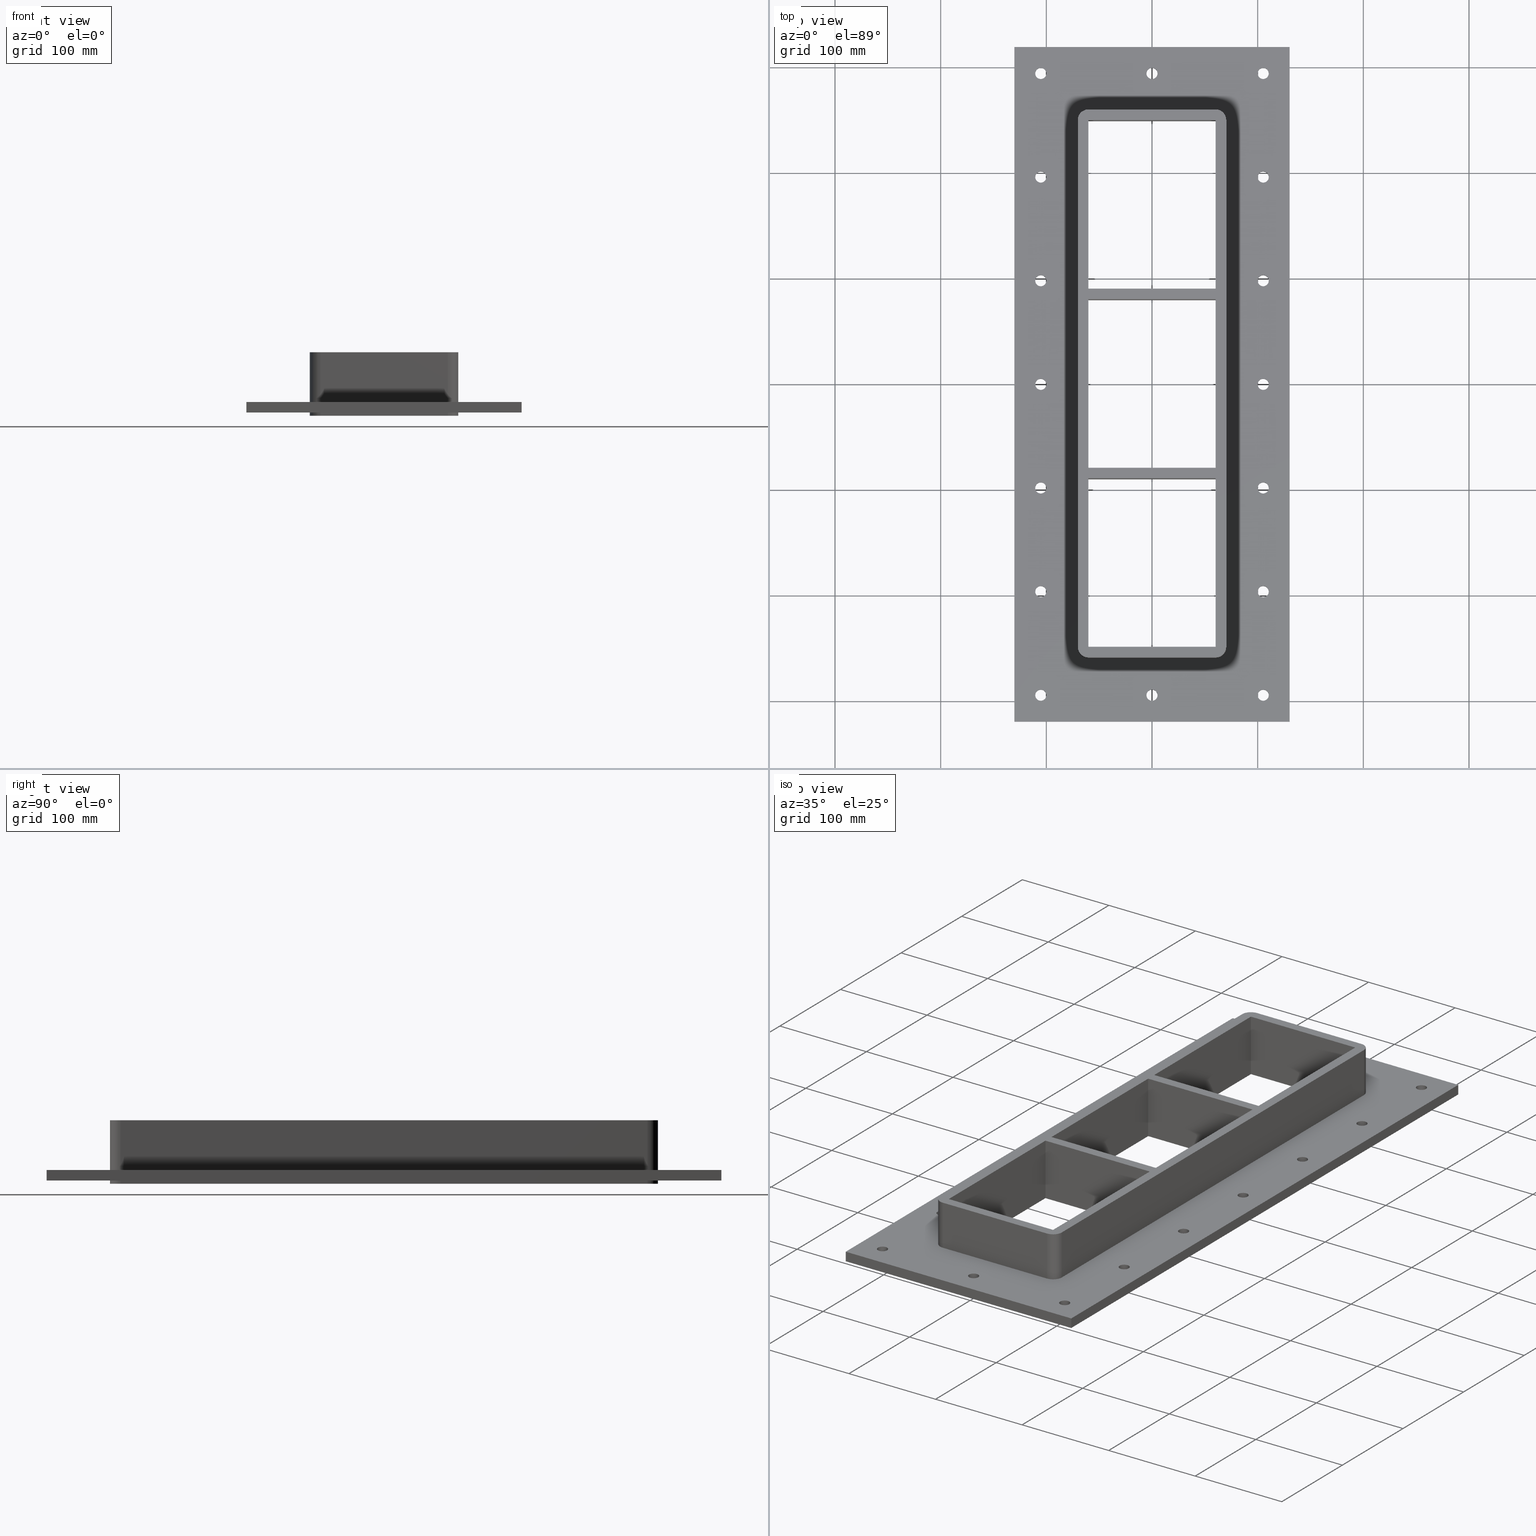
[diagram: canonical four-view strip — front | top / right | iso, engineering-drawing reading convention]
A machine part, canonical four-view strip (front | top / right | iso — engineering-drawing reading convention). The complete STEP part file that produces these views, byte-faithful:
ISO-10303-21;
HEADER;
/****************************************************************
 * Generated by software with PDElib inside                    *
 * PDElib Version v51a, created Wed 11/30/2011                  *
 * ITI Transcendata (http://www.transcendata.com/)              *
 ****************************************************************/
FILE_DESCRIPTION((''),'2;1');
FILE_NAME('C:\\Users\\se-milkar\\Desktop\\SFHM GENERATOR\\File dump\\SFHM4+4+4X1.stp','2017-01-17T17:23:52',(''),(''),'Autodesk Inventor 2013','Autodesk Inventor 2013','');
FILE_SCHEMA(('AUTOMOTIVE_DESIGN { 1 0 10303 214 1 1 1 1 }'));
ENDSEC;
DATA;
#5=APPLICATION_CONTEXT('automotive design');
#6=APPLICATION_PROTOCOL_DEFINITION('International Standard','automotive_design',2001,#5);
#7=PRODUCT_CONTEXT('',#5,'mechanical');
#8=PRODUCT('RTD-FRAME GENERATOR SF-LABB','RTD-FRAME GENERATOR SF-LABB',$,(#7));
#9=PRODUCT_RELATED_PRODUCT_CATEGORY('part',$,(#8));
#10=PRODUCT_DEFINITION_FORMATION('',$,#8);
#11=PRODUCT_DEFINITION_CONTEXT('part definition',#5,'design');
#12=PRODUCT_DEFINITION('',$,#10,#11);
#18=(NAMED_UNIT(*)PLANE_ANGLE_UNIT()SI_UNIT($,.RADIAN.));
#19=DIMENSIONAL_EXPONENTS(0.0,0.0,0.0,0.0,0.0,0.0,0.0);
#20=PLANE_ANGLE_MEASURE_WITH_UNIT(PLANE_ANGLE_MEASURE(0.0174532925),#18);
#24=(CONVERSION_BASED_UNIT('DEGREE',#20)NAMED_UNIT(#19)PLANE_ANGLE_UNIT());
#28=(NAMED_UNIT(*)SI_UNIT($,.STERADIAN.)SOLID_ANGLE_UNIT());
#32=(LENGTH_UNIT()NAMED_UNIT(*)SI_UNIT(.MILLI.,.METRE.));
#34=UNCERTAINTY_MEASURE_WITH_UNIT(LENGTH_MEASURE(0.01),#32,'DISTANCE_ACCURACY_VALUE','');
#36=(GEOMETRIC_REPRESENTATION_CONTEXT(3)GLOBAL_UNCERTAINTY_ASSIGNED_CONTEXT((#34))GLOBAL_UNIT_ASSIGNED_CONTEXT((#24,#28,#32))REPRESENTATION_CONTEXT('None','None'));
#37=AXIS2_PLACEMENT_3D('',#38,#39,#40);
#38=CARTESIAN_POINT('',(0.0,0.0,0.0));
#39=DIRECTION('',(0.0,0.0,1.0));
#40=DIRECTION('',(1.0,0.0,0.0));
#41=SHAPE_REPRESENTATION('',(#37),#36);
#42=PRODUCT_DEFINITION_SHAPE('','',#12);
#43=SHAPE_DEFINITION_REPRESENTATION(#42,#41);
#49=(NAMED_UNIT(*)PLANE_ANGLE_UNIT()SI_UNIT($,.RADIAN.));
#50=DIMENSIONAL_EXPONENTS(0.0,0.0,0.0,0.0,0.0,0.0,0.0);
#51=PLANE_ANGLE_MEASURE_WITH_UNIT(PLANE_ANGLE_MEASURE(0.0174532925),#49);
#55=(CONVERSION_BASED_UNIT('DEGREE',#51)NAMED_UNIT(#50)PLANE_ANGLE_UNIT());
#59=(NAMED_UNIT(*)SI_UNIT($,.STERADIAN.)SOLID_ANGLE_UNIT());
#63=(LENGTH_UNIT()NAMED_UNIT(*)SI_UNIT(.MILLI.,.METRE.));
#65=UNCERTAINTY_MEASURE_WITH_UNIT(LENGTH_MEASURE(0.000001),#63,'DISTANCE_ACCURACY_VALUE','');
#67=(GEOMETRIC_REPRESENTATION_CONTEXT(3)GLOBAL_UNCERTAINTY_ASSIGNED_CONTEXT((#65))GLOBAL_UNIT_ASSIGNED_CONTEXT((#55,#59,#63))REPRESENTATION_CONTEXT('','3D'));
#68=CARTESIAN_POINT('',(-1.776357E-014,-294.25,-709.20119907437322));
#69=DIRECTION('',(0.0,0.0,1.0));
#70=DIRECTION('',(1.0,0.0,0.0));
#71=AXIS2_PLACEMENT_3D('',#68,#69,#70);
#72=CYLINDRICAL_SURFACE('',#71,5.25);
#73=CARTESIAN_POINT('',(-5.250000000000021,-294.25,-27.000000000000028));
#74=VERTEX_POINT('',#73);
#75=CARTESIAN_POINT('',(-1.776357E-014,-294.25,-27.000000000000028));
#76=DIRECTION('',(0.0,0.0,1.0));
#77=DIRECTION('',(1.0,0.0,0.0));
#78=AXIS2_PLACEMENT_3D('',#75,#76,#77);
#79=CIRCLE('',#78,5.25);
#80=EDGE_CURVE('',#74,#74,#79,.T.);
#81=ORIENTED_EDGE('',*,*,#80,.F.);
#82=EDGE_LOOP('',(#81));
#83=FACE_OUTER_BOUND('',#82,.T.);
#84=CARTESIAN_POINT('',(5.249999999999986,-294.25,-16.999999999999996));
#85=VERTEX_POINT('',#84);
#86=CARTESIAN_POINT('',(-1.776357E-014,-294.25,-17.000000000000028));
#87=DIRECTION('',(0.0,0.0,-1.0));
#88=DIRECTION('',(1.0,0.0,0.0));
#89=AXIS2_PLACEMENT_3D('',#86,#87,#88);
#90=CIRCLE('',#89,5.25);
#91=EDGE_CURVE('',#85,#85,#90,.T.);
#92=ORIENTED_EDGE('',*,*,#91,.F.);
#93=EDGE_LOOP('',(#92));
#94=FACE_BOUND('',#93,.T.);
#95=ADVANCED_FACE('',(#83,#94),#72,.F.);
#96=CARTESIAN_POINT('',(-5.329071E-014,294.25,-709.20119907437322));
#97=DIRECTION('',(0.0,0.0,1.0));
#98=DIRECTION('',(1.0,0.0,0.0));
#99=AXIS2_PLACEMENT_3D('',#96,#97,#98);
#100=CYLINDRICAL_SURFACE('',#99,5.25);
#101=CARTESIAN_POINT('',(-5.250000000000057,294.25,-27.000000000000028));
#102=VERTEX_POINT('',#101);
#103=CARTESIAN_POINT('',(-5.329071E-014,294.25,-27.000000000000028));
#104=DIRECTION('',(0.0,0.0,1.0));
#105=DIRECTION('',(1.0,0.0,0.0));
#106=AXIS2_PLACEMENT_3D('',#103,#104,#105);
#107=CIRCLE('',#106,5.25);
#108=EDGE_CURVE('',#102,#102,#107,.T.);
#109=ORIENTED_EDGE('',*,*,#108,.F.);
#110=EDGE_LOOP('',(#109));
#111=FACE_OUTER_BOUND('',#110,.T.);
#112=CARTESIAN_POINT('',(5.24999999999995,294.25,-16.999999999999996));
#113=VERTEX_POINT('',#112);
#114=CARTESIAN_POINT('',(-5.329071E-014,294.25,-17.000000000000028));
#115=DIRECTION('',(0.0,0.0,-1.0));
#116=DIRECTION('',(1.0,0.0,0.0));
#117=AXIS2_PLACEMENT_3D('',#114,#115,#116);
#118=CIRCLE('',#117,5.25);
#119=EDGE_CURVE('',#113,#113,#118,.T.);
#120=ORIENTED_EDGE('',*,*,#119,.F.);
#121=EDGE_LOOP('',(#120));
#122=FACE_BOUND('',#121,.T.);
#123=ADVANCED_FACE('',(#111,#122),#100,.F.);
#124=CARTESIAN_POINT('',(105.24999999999999,-196.16666666666663,-709.20119907437322));
#125=DIRECTION('',(0.0,0.0,1.0));
#126=DIRECTION('',(1.0,0.0,0.0));
#127=AXIS2_PLACEMENT_3D('',#124,#125,#126);
#128=CYLINDRICAL_SURFACE('',#127,5.25);
#129=CARTESIAN_POINT('',(99.999999999999986,-196.16666666666663,-27.000000000000028));
#130=VERTEX_POINT('',#129);
#131=CARTESIAN_POINT('',(105.24999999999999,-196.16666666666663,-27.000000000000028));
#132=DIRECTION('',(0.0,0.0,1.0));
#133=DIRECTION('',(1.0,0.0,0.0));
#134=AXIS2_PLACEMENT_3D('',#131,#132,#133);
#135=CIRCLE('',#134,5.25);
#136=EDGE_CURVE('',#130,#130,#135,.T.);
#137=ORIENTED_EDGE('',*,*,#136,.F.);
#138=EDGE_LOOP('',(#137));
#139=FACE_OUTER_BOUND('',#138,.T.);
#140=CARTESIAN_POINT('',(110.49999999999999,-196.16666666666663,-16.999999999999996));
#141=VERTEX_POINT('',#140);
#142=CARTESIAN_POINT('',(105.24999999999999,-196.16666666666663,-17.000000000000028));
#143=DIRECTION('',(0.0,0.0,-1.0));
#144=DIRECTION('',(1.0,0.0,0.0));
#145=AXIS2_PLACEMENT_3D('',#142,#143,#144);
#146=CIRCLE('',#145,5.25);
#147=EDGE_CURVE('',#141,#141,#146,.T.);
#148=ORIENTED_EDGE('',*,*,#147,.F.);
#149=EDGE_LOOP('',(#148));
#150=FACE_BOUND('',#149,.T.);
#151=ADVANCED_FACE('',(#139,#150),#128,.F.);
#152=CARTESIAN_POINT('',(105.24999999999999,-98.0833333333333,-709.20119907437322));
#153=DIRECTION('',(0.0,0.0,1.0));
#154=DIRECTION('',(1.0,0.0,0.0));
#155=AXIS2_PLACEMENT_3D('',#152,#153,#154);
#156=CYLINDRICAL_SURFACE('',#155,5.25);
#157=CARTESIAN_POINT('',(99.999999999999986,-98.0833333333333,-27.000000000000028));
#158=VERTEX_POINT('',#157);
#159=CARTESIAN_POINT('',(105.24999999999999,-98.0833333333333,-27.000000000000028));
#160=DIRECTION('',(0.0,0.0,1.0));
#161=DIRECTION('',(1.0,0.0,0.0));
#162=AXIS2_PLACEMENT_3D('',#159,#160,#161);
#163=CIRCLE('',#162,5.25);
#164=EDGE_CURVE('',#158,#158,#163,.T.);
#165=ORIENTED_EDGE('',*,*,#164,.F.);
#166=EDGE_LOOP('',(#165));
#167=FACE_OUTER_BOUND('',#166,.T.);
#168=CARTESIAN_POINT('',(110.49999999999999,-98.0833333333333,-16.999999999999996));
#169=VERTEX_POINT('',#168);
#170=CARTESIAN_POINT('',(105.24999999999999,-98.0833333333333,-17.000000000000028));
#171=DIRECTION('',(0.0,0.0,-1.0));
#172=DIRECTION('',(1.0,0.0,0.0));
#173=AXIS2_PLACEMENT_3D('',#170,#171,#172);
#174=CIRCLE('',#173,5.25);
#175=EDGE_CURVE('',#169,#169,#174,.T.);
#176=ORIENTED_EDGE('',*,*,#175,.F.);
#177=EDGE_LOOP('',(#176));
#178=FACE_BOUND('',#177,.T.);
#179=ADVANCED_FACE('',(#167,#178),#156,.F.);
#180=CARTESIAN_POINT('',(105.24999999999999,3.552714E-014,-709.20119907437322));
#181=DIRECTION('',(0.0,0.0,1.0));
#182=DIRECTION('',(1.0,0.0,0.0));
#183=AXIS2_PLACEMENT_3D('',#180,#181,#182);
#184=CYLINDRICAL_SURFACE('',#183,5.25);
#185=CARTESIAN_POINT('',(99.999999999999986,3.552714E-014,-27.000000000000028));
#186=VERTEX_POINT('',#185);
#187=CARTESIAN_POINT('',(105.24999999999999,3.552714E-014,-27.000000000000028));
#188=DIRECTION('',(0.0,0.0,1.0));
#189=DIRECTION('',(1.0,0.0,0.0));
#190=AXIS2_PLACEMENT_3D('',#187,#188,#189);
#191=CIRCLE('',#190,5.25);
#192=EDGE_CURVE('',#186,#186,#191,.T.);
#193=ORIENTED_EDGE('',*,*,#192,.F.);
#194=EDGE_LOOP('',(#193));
#195=FACE_OUTER_BOUND('',#194,.T.);
#196=CARTESIAN_POINT('',(110.49999999999999,3.552714E-014,-16.999999999999996));
#197=VERTEX_POINT('',#196);
#198=CARTESIAN_POINT('',(105.24999999999999,3.552714E-014,-17.000000000000028));
#199=DIRECTION('',(0.0,0.0,-1.0));
#200=DIRECTION('',(1.0,0.0,0.0));
#201=AXIS2_PLACEMENT_3D('',#198,#199,#200);
#202=CIRCLE('',#201,5.25);
#203=EDGE_CURVE('',#197,#197,#202,.T.);
#204=ORIENTED_EDGE('',*,*,#203,.F.);
#205=EDGE_LOOP('',(#204));
#206=FACE_BOUND('',#205,.T.);
#207=ADVANCED_FACE('',(#195,#206),#184,.F.);
#208=CARTESIAN_POINT('',(105.24999999999999,98.083333333333371,-709.20119907437322));
#209=DIRECTION('',(0.0,0.0,1.0));
#210=DIRECTION('',(1.0,0.0,0.0));
#211=AXIS2_PLACEMENT_3D('',#208,#209,#210);
#212=CYLINDRICAL_SURFACE('',#211,5.25);
#213=CARTESIAN_POINT('',(99.999999999999986,98.083333333333371,-27.000000000000028));
#214=VERTEX_POINT('',#213);
#215=CARTESIAN_POINT('',(105.24999999999999,98.083333333333371,-27.000000000000028));
#216=DIRECTION('',(0.0,0.0,1.0));
#217=DIRECTION('',(1.0,0.0,0.0));
#218=AXIS2_PLACEMENT_3D('',#215,#216,#217);
#219=CIRCLE('',#218,5.25);
#220=EDGE_CURVE('',#214,#214,#219,.T.);
#221=ORIENTED_EDGE('',*,*,#220,.F.);
#222=EDGE_LOOP('',(#221));
#223=FACE_OUTER_BOUND('',#222,.T.);
#224=CARTESIAN_POINT('',(110.49999999999999,98.083333333333371,-16.999999999999996));
#225=VERTEX_POINT('',#224);
#226=CARTESIAN_POINT('',(105.24999999999999,98.083333333333371,-17.000000000000028));
#227=DIRECTION('',(0.0,0.0,-1.0));
#228=DIRECTION('',(1.0,0.0,0.0));
#229=AXIS2_PLACEMENT_3D('',#226,#227,#228);
#230=CIRCLE('',#229,5.25);
#231=EDGE_CURVE('',#225,#225,#230,.T.);
#232=ORIENTED_EDGE('',*,*,#231,.F.);
#233=EDGE_LOOP('',(#232));
#234=FACE_BOUND('',#233,.T.);
#235=ADVANCED_FACE('',(#223,#234),#212,.F.);
#236=CARTESIAN_POINT('',(105.24999999999999,196.16666666666671,-709.20119907437322));
#237=DIRECTION('',(0.0,0.0,1.0));
#238=DIRECTION('',(1.0,0.0,0.0));
#239=AXIS2_PLACEMENT_3D('',#236,#237,#238);
#240=CYLINDRICAL_SURFACE('',#239,5.25);
#241=CARTESIAN_POINT('',(99.999999999999986,196.16666666666671,-27.000000000000028));
#242=VERTEX_POINT('',#241);
#243=CARTESIAN_POINT('',(105.24999999999999,196.16666666666671,-27.000000000000028));
#244=DIRECTION('',(0.0,0.0,1.0));
#245=DIRECTION('',(1.0,0.0,0.0));
#246=AXIS2_PLACEMENT_3D('',#243,#244,#245);
#247=CIRCLE('',#246,5.25);
#248=EDGE_CURVE('',#242,#242,#247,.T.);
#249=ORIENTED_EDGE('',*,*,#248,.F.);
#250=EDGE_LOOP('',(#249));
#251=FACE_OUTER_BOUND('',#250,.T.);
#252=CARTESIAN_POINT('',(110.49999999999999,196.16666666666671,-16.999999999999996));
#253=VERTEX_POINT('',#252);
#254=CARTESIAN_POINT('',(105.24999999999999,196.16666666666671,-17.000000000000028));
#255=DIRECTION('',(0.0,0.0,-1.0));
#256=DIRECTION('',(1.0,0.0,0.0));
#257=AXIS2_PLACEMENT_3D('',#254,#255,#256);
#258=CIRCLE('',#257,5.25);
#259=EDGE_CURVE('',#253,#253,#258,.T.);
#260=ORIENTED_EDGE('',*,*,#259,.F.);
#261=EDGE_LOOP('',(#260));
#262=FACE_BOUND('',#261,.T.);
#263=ADVANCED_FACE('',(#251,#262),#240,.F.);
#264=CARTESIAN_POINT('',(-105.25000000000003,196.16666666666671,-709.20119907437322));
#265=DIRECTION('',(0.0,0.0,1.0));
#266=DIRECTION('',(1.0,0.0,0.0));
#267=AXIS2_PLACEMENT_3D('',#264,#265,#266);
#268=CYLINDRICAL_SURFACE('',#267,5.25);
#269=CARTESIAN_POINT('',(-110.50000000000003,196.16666666666671,-27.000000000000028));
#270=VERTEX_POINT('',#269);
#271=CARTESIAN_POINT('',(-105.25000000000003,196.16666666666671,-27.000000000000028));
#272=DIRECTION('',(0.0,0.0,1.0));
#273=DIRECTION('',(1.0,0.0,0.0));
#274=AXIS2_PLACEMENT_3D('',#271,#272,#273);
#275=CIRCLE('',#274,5.25);
#276=EDGE_CURVE('',#270,#270,#275,.T.);
#277=ORIENTED_EDGE('',*,*,#276,.F.);
#278=EDGE_LOOP('',(#277));
#279=FACE_OUTER_BOUND('',#278,.T.);
#280=CARTESIAN_POINT('',(-100.00000000000001,196.16666666666671,-16.999999999999996));
#281=VERTEX_POINT('',#280);
#282=CARTESIAN_POINT('',(-105.25000000000003,196.16666666666671,-17.000000000000028));
#283=DIRECTION('',(0.0,0.0,-1.0));
#284=DIRECTION('',(1.0,0.0,0.0));
#285=AXIS2_PLACEMENT_3D('',#282,#283,#284);
#286=CIRCLE('',#285,5.25);
#287=EDGE_CURVE('',#281,#281,#286,.T.);
#288=ORIENTED_EDGE('',*,*,#287,.F.);
#289=EDGE_LOOP('',(#288));
#290=FACE_BOUND('',#289,.T.);
#291=ADVANCED_FACE('',(#279,#290),#268,.F.);
#292=CARTESIAN_POINT('',(-105.25,98.083333333333371,-709.20119907437322));
#293=DIRECTION('',(0.0,0.0,1.0));
#294=DIRECTION('',(1.0,0.0,0.0));
#295=AXIS2_PLACEMENT_3D('',#292,#293,#294);
#296=CYLINDRICAL_SURFACE('',#295,5.25);
#297=CARTESIAN_POINT('',(-110.5,98.083333333333371,-27.000000000000028));
#298=VERTEX_POINT('',#297);
#299=CARTESIAN_POINT('',(-105.25,98.083333333333371,-27.000000000000028));
#300=DIRECTION('',(0.0,0.0,1.0));
#301=DIRECTION('',(1.0,0.0,0.0));
#302=AXIS2_PLACEMENT_3D('',#299,#300,#301);
#303=CIRCLE('',#302,5.25);
#304=EDGE_CURVE('',#298,#298,#303,.T.);
#305=ORIENTED_EDGE('',*,*,#304,.F.);
#306=EDGE_LOOP('',(#305));
#307=FACE_OUTER_BOUND('',#306,.T.);
#308=CARTESIAN_POINT('',(-100.0,98.083333333333371,-16.999999999999996));
#309=VERTEX_POINT('',#308);
#310=CARTESIAN_POINT('',(-105.25,98.083333333333371,-17.000000000000028));
#311=DIRECTION('',(0.0,0.0,-1.0));
#312=DIRECTION('',(1.0,0.0,0.0));
#313=AXIS2_PLACEMENT_3D('',#310,#311,#312);
#314=CIRCLE('',#313,5.25);
#315=EDGE_CURVE('',#309,#309,#314,.T.);
#316=ORIENTED_EDGE('',*,*,#315,.F.);
#317=EDGE_LOOP('',(#316));
#318=FACE_BOUND('',#317,.T.);
#319=ADVANCED_FACE('',(#307,#318),#296,.F.);
#320=CARTESIAN_POINT('',(-105.24999999999997,3.552714E-014,-709.20119907437322));
#321=DIRECTION('',(0.0,0.0,1.0));
#322=DIRECTION('',(1.0,0.0,0.0));
#323=AXIS2_PLACEMENT_3D('',#320,#321,#322);
#324=CYLINDRICAL_SURFACE('',#323,5.25);
#325=CARTESIAN_POINT('',(-110.49999999999997,3.552714E-014,-27.000000000000028));
#326=VERTEX_POINT('',#325);
#327=CARTESIAN_POINT('',(-105.24999999999997,3.552714E-014,-27.000000000000028));
#328=DIRECTION('',(0.0,0.0,1.0));
#329=DIRECTION('',(1.0,0.0,0.0));
#330=AXIS2_PLACEMENT_3D('',#327,#328,#329);
#331=CIRCLE('',#330,5.25);
#332=EDGE_CURVE('',#326,#326,#331,.T.);
#333=ORIENTED_EDGE('',*,*,#332,.F.);
#334=EDGE_LOOP('',(#333));
#335=FACE_OUTER_BOUND('',#334,.T.);
#336=CARTESIAN_POINT('',(-99.999999999999972,3.552714E-014,-16.999999999999996));
#337=VERTEX_POINT('',#336);
#338=CARTESIAN_POINT('',(-105.24999999999997,3.552714E-014,-17.000000000000028));
#339=DIRECTION('',(0.0,0.0,-1.0));
#340=DIRECTION('',(1.0,0.0,0.0));
#341=AXIS2_PLACEMENT_3D('',#338,#339,#340);
#342=CIRCLE('',#341,5.25);
#343=EDGE_CURVE('',#337,#337,#342,.T.);
#344=ORIENTED_EDGE('',*,*,#343,.F.);
#345=EDGE_LOOP('',(#344));
#346=FACE_BOUND('',#345,.T.);
#347=ADVANCED_FACE('',(#335,#346),#324,.F.);
#348=CARTESIAN_POINT('',(-105.24999999999994,-98.0833333333333,-709.20119907437322));
#349=DIRECTION('',(0.0,0.0,1.0));
#350=DIRECTION('',(1.0,0.0,0.0));
#351=AXIS2_PLACEMENT_3D('',#348,#349,#350);
#352=CYLINDRICAL_SURFACE('',#351,5.25);
#353=CARTESIAN_POINT('',(-110.49999999999996,-98.0833333333333,-27.000000000000028));
#354=VERTEX_POINT('',#353);
#355=CARTESIAN_POINT('',(-105.24999999999994,-98.0833333333333,-27.000000000000028));
#356=DIRECTION('',(0.0,0.0,1.0));
#357=DIRECTION('',(1.0,0.0,0.0));
#358=AXIS2_PLACEMENT_3D('',#355,#356,#357);
#359=CIRCLE('',#358,5.25);
#360=EDGE_CURVE('',#354,#354,#359,.T.);
#361=ORIENTED_EDGE('',*,*,#360,.F.);
#362=EDGE_LOOP('',(#361));
#363=FACE_OUTER_BOUND('',#362,.T.);
#364=CARTESIAN_POINT('',(-99.999999999999943,-98.0833333333333,-16.999999999999996));
#365=VERTEX_POINT('',#364);
#366=CARTESIAN_POINT('',(-105.24999999999994,-98.0833333333333,-17.000000000000028));
#367=DIRECTION('',(0.0,0.0,-1.0));
#368=DIRECTION('',(1.0,0.0,0.0));
#369=AXIS2_PLACEMENT_3D('',#366,#367,#368);
#370=CIRCLE('',#369,5.25);
#371=EDGE_CURVE('',#365,#365,#370,.T.);
#372=ORIENTED_EDGE('',*,*,#371,.F.);
#373=EDGE_LOOP('',(#372));
#374=FACE_BOUND('',#373,.T.);
#375=ADVANCED_FACE('',(#363,#374),#352,.F.);
#376=CARTESIAN_POINT('',(-105.24999999999993,-196.16666666666663,-709.20119907437322));
#377=DIRECTION('',(0.0,0.0,1.0));
#378=DIRECTION('',(1.0,0.0,0.0));
#379=AXIS2_PLACEMENT_3D('',#376,#377,#378);
#380=CYLINDRICAL_SURFACE('',#379,5.25);
#381=CARTESIAN_POINT('',(-110.49999999999994,-196.16666666666663,-27.000000000000028));
#382=VERTEX_POINT('',#381);
#383=CARTESIAN_POINT('',(-105.24999999999993,-196.16666666666663,-27.000000000000028));
#384=DIRECTION('',(0.0,0.0,1.0));
#385=DIRECTION('',(1.0,0.0,0.0));
#386=AXIS2_PLACEMENT_3D('',#383,#384,#385);
#387=CIRCLE('',#386,5.25);
#388=EDGE_CURVE('',#382,#382,#387,.T.);
#389=ORIENTED_EDGE('',*,*,#388,.F.);
#390=EDGE_LOOP('',(#389));
#391=FACE_OUTER_BOUND('',#390,.T.);
#392=CARTESIAN_POINT('',(-99.999999999999929,-196.16666666666663,-16.999999999999996));
#393=VERTEX_POINT('',#392);
#394=CARTESIAN_POINT('',(-105.24999999999993,-196.16666666666663,-17.000000000000028));
#395=DIRECTION('',(0.0,0.0,-1.0));
#396=DIRECTION('',(1.0,0.0,0.0));
#397=AXIS2_PLACEMENT_3D('',#394,#395,#396);
#398=CIRCLE('',#397,5.25);
#399=EDGE_CURVE('',#393,#393,#398,.T.);
#400=ORIENTED_EDGE('',*,*,#399,.F.);
#401=EDGE_LOOP('',(#400));
#402=FACE_BOUND('',#401,.T.);
#403=ADVANCED_FACE('',(#391,#402),#380,.F.);
#404=CARTESIAN_POINT('',(-105.25000000000006,294.25,-709.20119907437322));
#405=DIRECTION('',(0.0,0.0,1.0));
#406=DIRECTION('',(1.0,0.0,0.0));
#407=AXIS2_PLACEMENT_3D('',#404,#405,#406);
#408=CYLINDRICAL_SURFACE('',#407,5.25);
#409=CARTESIAN_POINT('',(-110.50000000000006,294.25,-27.000000000000028));
#410=VERTEX_POINT('',#409);
#411=CARTESIAN_POINT('',(-105.25000000000006,294.25,-27.000000000000028));
#412=DIRECTION('',(0.0,0.0,1.0));
#413=DIRECTION('',(1.0,0.0,0.0));
#414=AXIS2_PLACEMENT_3D('',#411,#412,#413);
#415=CIRCLE('',#414,5.25);
#416=EDGE_CURVE('',#410,#410,#415,.T.);
#417=ORIENTED_EDGE('',*,*,#416,.F.);
#418=EDGE_LOOP('',(#417));
#419=FACE_OUTER_BOUND('',#418,.T.);
#420=CARTESIAN_POINT('',(-100.00000000000006,294.25,-16.999999999999996));
#421=VERTEX_POINT('',#420);
#422=CARTESIAN_POINT('',(-105.25000000000006,294.25,-17.000000000000028));
#423=DIRECTION('',(0.0,0.0,-1.0));
#424=DIRECTION('',(1.0,0.0,0.0));
#425=AXIS2_PLACEMENT_3D('',#422,#423,#424);
#426=CIRCLE('',#425,5.25);
#427=EDGE_CURVE('',#421,#421,#426,.T.);
#428=ORIENTED_EDGE('',*,*,#427,.F.);
#429=EDGE_LOOP('',(#428));
#430=FACE_BOUND('',#429,.T.);
#431=ADVANCED_FACE('',(#419,#430),#408,.F.);
#432=CARTESIAN_POINT('',(105.24999999999999,294.25000000000006,-709.20119907437322));
#433=DIRECTION('',(0.0,0.0,1.0));
#434=DIRECTION('',(1.0,0.0,0.0));
#435=AXIS2_PLACEMENT_3D('',#432,#433,#434);
#436=CYLINDRICAL_SURFACE('',#435,5.25);
#437=CARTESIAN_POINT('',(99.999999999999986,294.25000000000006,-27.000000000000028));
#438=VERTEX_POINT('',#437);
#439=CARTESIAN_POINT('',(105.24999999999999,294.25000000000006,-27.000000000000028));
#440=DIRECTION('',(0.0,0.0,1.0));
#441=DIRECTION('',(1.0,0.0,0.0));
#442=AXIS2_PLACEMENT_3D('',#439,#440,#441);
#443=CIRCLE('',#442,5.25);
#444=EDGE_CURVE('',#438,#438,#443,.T.);
#445=ORIENTED_EDGE('',*,*,#444,.F.);
#446=EDGE_LOOP('',(#445));
#447=FACE_OUTER_BOUND('',#446,.T.);
#448=CARTESIAN_POINT('',(110.49999999999999,294.25000000000006,-16.999999999999996));
#449=VERTEX_POINT('',#448);
#450=CARTESIAN_POINT('',(105.24999999999999,294.25000000000006,-17.000000000000028));
#451=DIRECTION('',(0.0,0.0,-1.0));
#452=DIRECTION('',(1.0,0.0,0.0));
#453=AXIS2_PLACEMENT_3D('',#450,#451,#452);
#454=CIRCLE('',#453,5.25);
#455=EDGE_CURVE('',#449,#449,#454,.T.);
#456=ORIENTED_EDGE('',*,*,#455,.F.);
#457=EDGE_LOOP('',(#456));
#458=FACE_BOUND('',#457,.T.);
#459=ADVANCED_FACE('',(#447,#458),#436,.F.);
#460=CARTESIAN_POINT('',(105.24999999999999,-294.25,-709.20119907437322));
#461=DIRECTION('',(0.0,0.0,1.0));
#462=DIRECTION('',(1.0,0.0,0.0));
#463=AXIS2_PLACEMENT_3D('',#460,#461,#462);
#464=CYLINDRICAL_SURFACE('',#463,5.25);
#465=CARTESIAN_POINT('',(99.999999999999986,-294.25,-27.000000000000028));
#466=VERTEX_POINT('',#465);
#467=CARTESIAN_POINT('',(105.24999999999999,-294.25,-27.000000000000028));
#468=DIRECTION('',(0.0,0.0,1.0));
#469=DIRECTION('',(1.0,0.0,0.0));
#470=AXIS2_PLACEMENT_3D('',#467,#468,#469);
#471=CIRCLE('',#470,5.25);
#472=EDGE_CURVE('',#466,#466,#471,.T.);
#473=ORIENTED_EDGE('',*,*,#472,.F.);
#474=EDGE_LOOP('',(#473));
#475=FACE_OUTER_BOUND('',#474,.T.);
#476=CARTESIAN_POINT('',(110.49999999999999,-294.25,-16.999999999999996));
#477=VERTEX_POINT('',#476);
#478=CARTESIAN_POINT('',(105.24999999999999,-294.25,-17.000000000000028));
#479=DIRECTION('',(0.0,0.0,-1.0));
#480=DIRECTION('',(1.0,0.0,0.0));
#481=AXIS2_PLACEMENT_3D('',#478,#479,#480);
#482=CIRCLE('',#481,5.25);
#483=EDGE_CURVE('',#477,#477,#482,.T.);
#484=ORIENTED_EDGE('',*,*,#483,.F.);
#485=EDGE_LOOP('',(#484));
#486=FACE_BOUND('',#485,.T.);
#487=ADVANCED_FACE('',(#475,#486),#464,.F.);
#488=CARTESIAN_POINT('',(-105.24999999999991,-294.25,-709.20119907437322));
#489=DIRECTION('',(0.0,0.0,1.0));
#490=DIRECTION('',(1.0,0.0,0.0));
#491=AXIS2_PLACEMENT_3D('',#488,#489,#490);
#492=CYLINDRICAL_SURFACE('',#491,5.25);
#493=CARTESIAN_POINT('',(-110.49999999999991,-294.25,-27.000000000000028));
#494=VERTEX_POINT('',#493);
#495=CARTESIAN_POINT('',(-105.24999999999991,-294.25,-27.000000000000028));
#496=DIRECTION('',(0.0,0.0,1.0));
#497=DIRECTION('',(1.0,0.0,0.0));
#498=AXIS2_PLACEMENT_3D('',#495,#496,#497);
#499=CIRCLE('',#498,5.25);
#500=EDGE_CURVE('',#494,#494,#499,.T.);
#501=ORIENTED_EDGE('',*,*,#500,.F.);
#502=EDGE_LOOP('',(#501));
#503=FACE_OUTER_BOUND('',#502,.T.);
#504=CARTESIAN_POINT('',(-99.999999999999915,-294.25,-16.999999999999996));
#505=VERTEX_POINT('',#504);
#506=CARTESIAN_POINT('',(-105.24999999999991,-294.25,-17.000000000000028));
#507=DIRECTION('',(0.0,0.0,-1.0));
#508=DIRECTION('',(1.0,0.0,0.0));
#509=AXIS2_PLACEMENT_3D('',#506,#507,#508);
#510=CIRCLE('',#509,5.25);
#511=EDGE_CURVE('',#505,#505,#510,.T.);
#512=ORIENTED_EDGE('',*,*,#511,.F.);
#513=EDGE_LOOP('',(#512));
#514=FACE_BOUND('',#513,.T.);
#515=ADVANCED_FACE('',(#503,#514),#492,.F.);
#516=CARTESIAN_POINT('',(-130.25000000000006,319.25,-27.0));
#517=DIRECTION('',(-1.0,0.0,0.0));
#518=DIRECTION('',(0.0,-1.0,0.0));
#519=AXIS2_PLACEMENT_3D('',#516,#517,#518);
#520=PLANE('',#519);
#521=CARTESIAN_POINT('',(-130.24999999999991,-319.25,-27.0));
#522=VERTEX_POINT('',#521);
#523=CARTESIAN_POINT('',(-130.25000000000006,319.25,-27.0));
#524=VERTEX_POINT('',#523);
#525=CARTESIAN_POINT('',(-130.24999999999991,-319.25,-27.0));
#526=DIRECTION('',(0.0,1.0,0.0));
#527=VECTOR('',#526,638.5);
#528=LINE('',#525,#527);
#529=EDGE_CURVE('',#522,#524,#528,.T.);
#530=ORIENTED_EDGE('',*,*,#529,.F.);
#531=CARTESIAN_POINT('',(-130.24999999999991,-319.25,-17.0));
#532=VERTEX_POINT('',#531);
#533=CARTESIAN_POINT('',(-130.24999999999991,-319.25,-27.0));
#534=DIRECTION('',(0.0,0.0,1.0));
#535=VECTOR('',#534,10.0);
#536=LINE('',#533,#535);
#537=EDGE_CURVE('',#522,#532,#536,.T.);
#538=ORIENTED_EDGE('',*,*,#537,.T.);
#539=CARTESIAN_POINT('',(-130.25000000000006,319.25,-17.0));
#540=VERTEX_POINT('',#539);
#541=CARTESIAN_POINT('',(-130.25000000000006,319.25,-17.0));
#542=DIRECTION('',(0.0,-1.0,0.0));
#543=VECTOR('',#542,638.5);
#544=LINE('',#541,#543);
#545=EDGE_CURVE('',#540,#532,#544,.T.);
#546=ORIENTED_EDGE('',*,*,#545,.F.);
#547=CARTESIAN_POINT('',(-130.25000000000006,319.25,-27.0));
#548=DIRECTION('',(0.0,0.0,1.0));
#549=VECTOR('',#548,10.0);
#550=LINE('',#547,#549);
#551=EDGE_CURVE('',#524,#540,#550,.T.);
#552=ORIENTED_EDGE('',*,*,#551,.F.);
#553=EDGE_LOOP('',(#530,#538,#546,#552));
#554=FACE_OUTER_BOUND('',#553,.T.);
#555=ADVANCED_FACE('',(#554),#520,.T.);
#556=CARTESIAN_POINT('',(130.25,319.25000000000006,-27.0));
#557=DIRECTION('',(0.0,1.0,0.0));
#558=DIRECTION('',(-1.0,0.0,0.0));
#559=AXIS2_PLACEMENT_3D('',#556,#557,#558);
#560=PLANE('',#559);
#561=CARTESIAN_POINT('',(130.25,319.25000000000006,-27.0));
#562=VERTEX_POINT('',#561);
#563=CARTESIAN_POINT('',(-130.25000000000006,319.25,-27.0));
#564=DIRECTION('',(1.0,0.0,0.0));
#565=VECTOR('',#564,260.50000000000006);
#566=LINE('',#563,#565);
#567=EDGE_CURVE('',#524,#562,#566,.T.);
#568=ORIENTED_EDGE('',*,*,#567,.F.);
#569=ORIENTED_EDGE('',*,*,#551,.T.);
#570=CARTESIAN_POINT('',(130.25,319.25000000000006,-17.0));
#571=VERTEX_POINT('',#570);
#572=CARTESIAN_POINT('',(130.25,319.25000000000006,-17.0));
#573=DIRECTION('',(-1.0,0.0,0.0));
#574=VECTOR('',#573,260.50000000000006);
#575=LINE('',#572,#574);
#576=EDGE_CURVE('',#571,#540,#575,.T.);
#577=ORIENTED_EDGE('',*,*,#576,.F.);
#578=CARTESIAN_POINT('',(130.25,319.25000000000006,-27.0));
#579=DIRECTION('',(0.0,0.0,1.0));
#580=VECTOR('',#579,10.0);
#581=LINE('',#578,#580);
#582=EDGE_CURVE('',#562,#571,#581,.T.);
#583=ORIENTED_EDGE('',*,*,#582,.F.);
#584=EDGE_LOOP('',(#568,#569,#577,#583));
#585=FACE_OUTER_BOUND('',#584,.T.);
#586=ADVANCED_FACE('',(#585),#560,.T.);
#587=CARTESIAN_POINT('',(130.25,-319.25,-27.0));
#588=DIRECTION('',(1.0,0.0,0.0));
#589=DIRECTION('',(0.0,1.0,0.0));
#590=AXIS2_PLACEMENT_3D('',#587,#588,#589);
#591=PLANE('',#590);
#592=CARTESIAN_POINT('',(130.25,-319.25,-27.0));
#593=VERTEX_POINT('',#592);
#594=CARTESIAN_POINT('',(130.25,319.25000000000006,-27.0));
#595=DIRECTION('',(0.0,-1.0,0.0));
#596=VECTOR('',#595,638.5);
#597=LINE('',#594,#596);
#598=EDGE_CURVE('',#562,#593,#597,.T.);
#599=ORIENTED_EDGE('',*,*,#598,.F.);
#600=ORIENTED_EDGE('',*,*,#582,.T.);
#601=CARTESIAN_POINT('',(130.25,-319.25,-17.0));
#602=VERTEX_POINT('',#601);
#603=CARTESIAN_POINT('',(130.25,-319.24999999999994,-17.0));
#604=DIRECTION('',(0.0,1.0,0.0));
#605=VECTOR('',#604,638.5);
#606=LINE('',#603,#605);
#607=EDGE_CURVE('',#602,#571,#606,.T.);
#608=ORIENTED_EDGE('',*,*,#607,.F.);
#609=CARTESIAN_POINT('',(130.25,-319.25,-27.0));
#610=DIRECTION('',(0.0,0.0,1.0));
#611=VECTOR('',#610,10.0);
#612=LINE('',#609,#611);
#613=EDGE_CURVE('',#593,#602,#612,.T.);
#614=ORIENTED_EDGE('',*,*,#613,.F.);
#615=EDGE_LOOP('',(#599,#600,#608,#614));
#616=FACE_OUTER_BOUND('',#615,.T.);
#617=ADVANCED_FACE('',(#616),#591,.T.);
#618=CARTESIAN_POINT('',(-130.24999999999991,-319.25,-27.0));
#619=DIRECTION('',(0.0,-1.0,0.0));
#620=DIRECTION('',(1.0,0.0,0.0));
#621=AXIS2_PLACEMENT_3D('',#618,#619,#620);
#622=PLANE('',#621);
#623=CARTESIAN_POINT('',(130.25,-319.25,-27.0));
#624=DIRECTION('',(-1.0,0.0,0.0));
#625=VECTOR('',#624,260.49999999999989);
#626=LINE('',#623,#625);
#627=EDGE_CURVE('',#593,#522,#626,.T.);
#628=ORIENTED_EDGE('',*,*,#627,.F.);
#629=ORIENTED_EDGE('',*,*,#613,.T.);
#630=CARTESIAN_POINT('',(-130.24999999999989,-319.25000000000006,-17.0));
#631=DIRECTION('',(1.0,0.0,0.0));
#632=VECTOR('',#631,260.49999999999989);
#633=LINE('',#630,#632);
#634=EDGE_CURVE('',#532,#602,#633,.T.);
#635=ORIENTED_EDGE('',*,*,#634,.F.);
#636=ORIENTED_EDGE('',*,*,#537,.F.);
#637=EDGE_LOOP('',(#628,#629,#635,#636));
#638=FACE_OUTER_BOUND('',#637,.T.);
#639=ADVANCED_FACE('',(#638),#622,.T.);
#640=CARTESIAN_POINT('',(0.0,5.055405E-014,-16.999999999999996));
#641=DIRECTION('',(0.0,0.0,1.0));
#642=DIRECTION('',(1.0,0.0,0.0));
#643=AXIS2_PLACEMENT_3D('',#640,#641,#642);
#644=PLANE('',#643);
#645=ORIENTED_EDGE('',*,*,#634,.T.);
#646=ORIENTED_EDGE('',*,*,#607,.T.);
#647=ORIENTED_EDGE('',*,*,#576,.T.);
#648=ORIENTED_EDGE('',*,*,#545,.T.);
#649=EDGE_LOOP('',(#645,#646,#647,#648));
#650=FACE_OUTER_BOUND('',#649,.T.);
#651=ORIENTED_EDGE('',*,*,#91,.T.);
#652=EDGE_LOOP('',(#651));
#653=FACE_BOUND('',#652,.T.);
#654=ORIENTED_EDGE('',*,*,#119,.T.);
#655=EDGE_LOOP('',(#654));
#656=FACE_BOUND('',#655,.T.);
#657=ORIENTED_EDGE('',*,*,#147,.T.);
#658=EDGE_LOOP('',(#657));
#659=FACE_BOUND('',#658,.T.);
#660=ORIENTED_EDGE('',*,*,#175,.T.);
#661=EDGE_LOOP('',(#660));
#662=FACE_BOUND('',#661,.T.);
#663=ORIENTED_EDGE('',*,*,#203,.T.);
#664=EDGE_LOOP('',(#663));
#665=FACE_BOUND('',#664,.T.);
#666=ORIENTED_EDGE('',*,*,#231,.T.);
#667=EDGE_LOOP('',(#666));
#668=FACE_BOUND('',#667,.T.);
#669=ORIENTED_EDGE('',*,*,#259,.T.);
#670=EDGE_LOOP('',(#669));
#671=FACE_BOUND('',#670,.T.);
#672=ORIENTED_EDGE('',*,*,#287,.T.);
#673=EDGE_LOOP('',(#672));
#674=FACE_BOUND('',#673,.T.);
#675=ORIENTED_EDGE('',*,*,#315,.T.);
#676=EDGE_LOOP('',(#675));
#677=FACE_BOUND('',#676,.T.);
#678=ORIENTED_EDGE('',*,*,#343,.T.);
#679=EDGE_LOOP('',(#678));
#680=FACE_BOUND('',#679,.T.);
#681=ORIENTED_EDGE('',*,*,#371,.T.);
#682=EDGE_LOOP('',(#681));
#683=FACE_BOUND('',#682,.T.);
#684=ORIENTED_EDGE('',*,*,#399,.T.);
#685=EDGE_LOOP('',(#684));
#686=FACE_BOUND('',#685,.T.);
#687=ORIENTED_EDGE('',*,*,#427,.T.);
#688=EDGE_LOOP('',(#687));
#689=FACE_BOUND('',#688,.T.);
#690=ORIENTED_EDGE('',*,*,#455,.T.);
#691=EDGE_LOOP('',(#690));
#692=FACE_BOUND('',#691,.T.);
#693=ORIENTED_EDGE('',*,*,#483,.T.);
#694=EDGE_LOOP('',(#693));
#695=FACE_BOUND('',#694,.T.);
#696=ORIENTED_EDGE('',*,*,#511,.T.);
#697=EDGE_LOOP('',(#696));
#698=FACE_BOUND('',#697,.T.);
#699=CARTESIAN_POINT('',(70.249999999999915,249.25,-17.0));
#700=VERTEX_POINT('',#699);
#701=CARTESIAN_POINT('',(60.249999999999915,259.25000000000006,-17.0));
#702=VERTEX_POINT('',#701);
#703=CARTESIAN_POINT('',(60.249999999999915,249.25000000000011,-16.999999999999996));
#704=DIRECTION('',(0.0,0.0,1.0));
#705=DIRECTION('',(0.707106781186547,0.707106781186547,0.0));
#706=AXIS2_PLACEMENT_3D('',#703,#704,#705);
#707=CIRCLE('',#706,9.999999999999998);
#708=EDGE_CURVE('',#700,#702,#707,.T.);
#709=ORIENTED_EDGE('',*,*,#708,.F.);
#710=CARTESIAN_POINT('',(70.249999999999986,-249.25000000000006,-17.0));
#711=VERTEX_POINT('',#710);
#712=CARTESIAN_POINT('',(70.249999999999986,-249.25000000000006,-16.999999999999996));
#713=DIRECTION('',(0.0,1.0,0.0));
#714=VECTOR('',#713,498.50000000000006);
#715=LINE('',#712,#714);
#716=EDGE_CURVE('',#711,#700,#715,.T.);
#717=ORIENTED_EDGE('',*,*,#716,.F.);
#718=CARTESIAN_POINT('',(60.250000000000057,-259.25000000000006,-17.0));
#719=VERTEX_POINT('',#718);
#720=CARTESIAN_POINT('',(60.249999999999986,-249.24999999999989,-16.999999999999996));
#721=DIRECTION('',(0.0,0.0,1.0));
#722=DIRECTION('',(0.707106781186547,-0.707106781186547,0.0));
#723=AXIS2_PLACEMENT_3D('',#720,#721,#722);
#724=CIRCLE('',#723,9.999999999999998);
#725=EDGE_CURVE('',#719,#711,#724,.T.);
#726=ORIENTED_EDGE('',*,*,#725,.F.);
#727=CARTESIAN_POINT('',(-60.249999999999915,-259.25000000000006,-17.0));
#728=VERTEX_POINT('',#727);
#729=CARTESIAN_POINT('',(-60.249999999999915,-259.24999999999989,-16.999999999999996));
#730=DIRECTION('',(1.0,0.0,0.0));
#731=VECTOR('',#730,120.49999999999999);
#732=LINE('',#729,#731);
#733=EDGE_CURVE('',#728,#719,#732,.T.);
#734=ORIENTED_EDGE('',*,*,#733,.F.);
#735=CARTESIAN_POINT('',(-70.249999999999986,-249.25000000000006,-17.0));
#736=VERTEX_POINT('',#735);
#737=CARTESIAN_POINT('',(-60.249999999999915,-249.24999999999983,-16.999999999999996));
#738=DIRECTION('',(0.0,0.0,1.0));
#739=DIRECTION('',(-0.707106781186547,-0.707106781186547,0.0));
#740=AXIS2_PLACEMENT_3D('',#737,#738,#739);
#741=CIRCLE('',#740,9.999999999999998);
#742=EDGE_CURVE('',#736,#728,#741,.T.);
#743=ORIENTED_EDGE('',*,*,#742,.F.);
#744=CARTESIAN_POINT('',(-70.249999999999986,249.25,-17.0));
#745=VERTEX_POINT('',#744);
#746=CARTESIAN_POINT('',(-70.250000000000114,249.25,-16.999999999999996));
#747=DIRECTION('',(0.0,-1.0,0.0));
#748=VECTOR('',#747,498.50000000000006);
#749=LINE('',#746,#748);
#750=EDGE_CURVE('',#745,#736,#749,.T.);
#751=ORIENTED_EDGE('',*,*,#750,.F.);
#752=CARTESIAN_POINT('',(-60.250000000000057,259.25000000000006,-17.0));
#753=VERTEX_POINT('',#752);
#754=CARTESIAN_POINT('',(-60.250000000000128,249.25000000000011,-16.999999999999996));
#755=DIRECTION('',(0.0,0.0,1.0));
#756=DIRECTION('',(-0.707106781186547,0.707106781186547,0.0));
#757=AXIS2_PLACEMENT_3D('',#754,#755,#756);
#758=CIRCLE('',#757,9.999999999999998);
#759=EDGE_CURVE('',#753,#745,#758,.T.);
#760=ORIENTED_EDGE('',*,*,#759,.F.);
#761=CARTESIAN_POINT('',(60.249999999999915,259.25000000000011,-16.999999999999996));
#762=DIRECTION('',(-1.0,0.0,0.0));
#763=VECTOR('',#762,120.49999999999997);
#764=LINE('',#761,#763);
#765=EDGE_CURVE('',#702,#753,#764,.T.);
#766=ORIENTED_EDGE('',*,*,#765,.F.);
#767=EDGE_LOOP('',(#709,#717,#726,#734,#743,#751,#760,#766));
#768=FACE_BOUND('',#767,.T.);
#769=ADVANCED_FACE('',(#650,#653,#656,#659,#662,#665,#668,#671,#674,#677,#680,#683,#686,#689,#692,#695,#698,#768),#644,.T.);
#770=CARTESIAN_POINT('',(0.0,5.055405E-014,-26.999999999999996));
#771=DIRECTION('',(0.0,0.0,1.0));
#772=DIRECTION('',(1.0,0.0,0.0));
#773=AXIS2_PLACEMENT_3D('',#770,#771,#772);
#774=PLANE('',#773);
#775=ORIENTED_EDGE('',*,*,#627,.T.);
#776=ORIENTED_EDGE('',*,*,#529,.T.);
#777=ORIENTED_EDGE('',*,*,#567,.T.);
#778=ORIENTED_EDGE('',*,*,#598,.T.);
#779=EDGE_LOOP('',(#775,#776,#777,#778));
#780=FACE_OUTER_BOUND('',#779,.T.);
#781=ORIENTED_EDGE('',*,*,#80,.T.);
#782=EDGE_LOOP('',(#781));
#783=FACE_BOUND('',#782,.T.);
#784=ORIENTED_EDGE('',*,*,#108,.T.);
#785=EDGE_LOOP('',(#784));
#786=FACE_BOUND('',#785,.T.);
#787=ORIENTED_EDGE('',*,*,#136,.T.);
#788=EDGE_LOOP('',(#787));
#789=FACE_BOUND('',#788,.T.);
#790=ORIENTED_EDGE('',*,*,#164,.T.);
#791=EDGE_LOOP('',(#790));
#792=FACE_BOUND('',#791,.T.);
#793=ORIENTED_EDGE('',*,*,#192,.T.);
#794=EDGE_LOOP('',(#793));
#795=FACE_BOUND('',#794,.T.);
#796=ORIENTED_EDGE('',*,*,#220,.T.);
#797=EDGE_LOOP('',(#796));
#798=FACE_BOUND('',#797,.T.);
#799=ORIENTED_EDGE('',*,*,#248,.T.);
#800=EDGE_LOOP('',(#799));
#801=FACE_BOUND('',#800,.T.);
#802=ORIENTED_EDGE('',*,*,#276,.T.);
#803=EDGE_LOOP('',(#802));
#804=FACE_BOUND('',#803,.T.);
#805=ORIENTED_EDGE('',*,*,#304,.T.);
#806=EDGE_LOOP('',(#805));
#807=FACE_BOUND('',#806,.T.);
#808=ORIENTED_EDGE('',*,*,#332,.T.);
#809=EDGE_LOOP('',(#808));
#810=FACE_BOUND('',#809,.T.);
#811=ORIENTED_EDGE('',*,*,#360,.T.);
#812=EDGE_LOOP('',(#811));
#813=FACE_BOUND('',#812,.T.);
#814=ORIENTED_EDGE('',*,*,#388,.T.);
#815=EDGE_LOOP('',(#814));
#816=FACE_BOUND('',#815,.T.);
#817=ORIENTED_EDGE('',*,*,#416,.T.);
#818=EDGE_LOOP('',(#817));
#819=FACE_BOUND('',#818,.T.);
#820=ORIENTED_EDGE('',*,*,#444,.T.);
#821=EDGE_LOOP('',(#820));
#822=FACE_BOUND('',#821,.T.);
#823=ORIENTED_EDGE('',*,*,#472,.T.);
#824=EDGE_LOOP('',(#823));
#825=FACE_BOUND('',#824,.T.);
#826=ORIENTED_EDGE('',*,*,#500,.T.);
#827=EDGE_LOOP('',(#826));
#828=FACE_BOUND('',#827,.T.);
#829=CARTESIAN_POINT('',(60.249999999999915,259.25000000000006,-27.0));
#830=VERTEX_POINT('',#829);
#831=CARTESIAN_POINT('',(70.249999999999915,249.25,-27.0));
#832=VERTEX_POINT('',#831);
#833=CARTESIAN_POINT('',(60.249999999999915,249.25000000000011,-26.999999999999996));
#834=DIRECTION('',(0.0,0.0,-1.0));
#835=DIRECTION('',(0.707106781186547,0.707106781186547,0.0));
#836=AXIS2_PLACEMENT_3D('',#833,#834,#835);
#837=CIRCLE('',#836,9.999999999999998);
#838=EDGE_CURVE('',#830,#832,#837,.T.);
#839=ORIENTED_EDGE('',*,*,#838,.F.);
#840=CARTESIAN_POINT('',(-60.250000000000057,259.25000000000006,-27.0));
#841=VERTEX_POINT('',#840);
#842=CARTESIAN_POINT('',(-60.250000000000057,259.25000000000011,-26.999999999999996));
#843=DIRECTION('',(1.0,0.0,0.0));
#844=VECTOR('',#843,120.49999999999997);
#845=LINE('',#842,#844);
#846=EDGE_CURVE('',#841,#830,#845,.T.);
#847=ORIENTED_EDGE('',*,*,#846,.F.);
#848=CARTESIAN_POINT('',(-70.249999999999986,249.25,-27.0));
#849=VERTEX_POINT('',#848);
#850=CARTESIAN_POINT('',(-60.250000000000128,249.25000000000011,-26.999999999999996));
#851=DIRECTION('',(0.0,0.0,-1.0));
#852=DIRECTION('',(-0.707106781186547,0.707106781186547,0.0));
#853=AXIS2_PLACEMENT_3D('',#850,#851,#852);
#854=CIRCLE('',#853,9.999999999999998);
#855=EDGE_CURVE('',#849,#841,#854,.T.);
#856=ORIENTED_EDGE('',*,*,#855,.F.);
#857=CARTESIAN_POINT('',(-70.249999999999986,-249.25000000000006,-27.0));
#858=VERTEX_POINT('',#857);
#859=CARTESIAN_POINT('',(-70.249999999999915,-249.25000000000006,-26.999999999999996));
#860=DIRECTION('',(0.0,1.0,0.0));
#861=VECTOR('',#860,498.50000000000006);
#862=LINE('',#859,#861);
#863=EDGE_CURVE('',#858,#849,#862,.T.);
#864=ORIENTED_EDGE('',*,*,#863,.F.);
#865=CARTESIAN_POINT('',(-60.249999999999915,-259.25000000000006,-27.0));
#866=VERTEX_POINT('',#865);
#867=CARTESIAN_POINT('',(-60.249999999999915,-249.24999999999983,-26.999999999999996));
#868=DIRECTION('',(0.0,0.0,-1.0));
#869=DIRECTION('',(-0.707106781186547,-0.707106781186547,0.0));
#870=AXIS2_PLACEMENT_3D('',#867,#868,#869);
#871=CIRCLE('',#870,9.999999999999998);
#872=EDGE_CURVE('',#866,#858,#871,.T.);
#873=ORIENTED_EDGE('',*,*,#872,.F.);
#874=CARTESIAN_POINT('',(60.250000000000057,-259.25000000000006,-27.0));
#875=VERTEX_POINT('',#874);
#876=CARTESIAN_POINT('',(60.250000000000071,-259.24999999999989,-26.999999999999996));
#877=DIRECTION('',(-1.0,0.0,0.0));
#878=VECTOR('',#877,120.49999999999999);
#879=LINE('',#876,#878);
#880=EDGE_CURVE('',#875,#866,#879,.T.);
#881=ORIENTED_EDGE('',*,*,#880,.F.);
#882=CARTESIAN_POINT('',(70.249999999999986,-249.25000000000006,-27.0));
#883=VERTEX_POINT('',#882);
#884=CARTESIAN_POINT('',(60.249999999999986,-249.24999999999989,-26.999999999999996));
#885=DIRECTION('',(0.0,0.0,-1.0));
#886=DIRECTION('',(0.707106781186547,-0.707106781186547,0.0));
#887=AXIS2_PLACEMENT_3D('',#884,#885,#886);
#888=CIRCLE('',#887,9.999999999999998);
#889=EDGE_CURVE('',#883,#875,#888,.T.);
#890=ORIENTED_EDGE('',*,*,#889,.F.);
#891=CARTESIAN_POINT('',(70.249999999999915,249.25,-26.999999999999996));
#892=DIRECTION('',(0.0,-1.0,0.0));
#893=VECTOR('',#892,498.50000000000006);
#894=LINE('',#891,#893);
#895=EDGE_CURVE('',#832,#883,#894,.T.);
#896=ORIENTED_EDGE('',*,*,#895,.F.);
#897=EDGE_LOOP('',(#839,#847,#856,#864,#873,#881,#890,#896));
#898=FACE_BOUND('',#897,.T.);
#899=ADVANCED_FACE('',(#780,#783,#786,#789,#792,#795,#798,#801,#804,#807,#810,#813,#816,#819,#822,#825,#828,#898),#774,.F.);
#900=CARTESIAN_POINT('',(60.249999999999986,-249.24999999999989,0.0));
#901=DIRECTION('',(0.0,0.0,1.0));
#902=DIRECTION('',(0.707106781186547,-0.707106781186547,0.0));
#903=AXIS2_PLACEMENT_3D('',#900,#901,#902);
#904=CYLINDRICAL_SURFACE('',#903,10.0);
#905=ORIENTED_EDGE('',*,*,#889,.T.);
#906=CARTESIAN_POINT('',(60.249999999999986,-259.24999999999989,-30.0));
#907=VERTEX_POINT('',#906);
#908=CARTESIAN_POINT('',(60.249999999999986,-259.24999999999989,-27.0));
#909=DIRECTION('',(0.0,0.0,-1.0));
#910=VECTOR('',#909,3.0);
#911=LINE('',#908,#910);
#912=EDGE_CURVE('',#875,#907,#911,.T.);
#913=ORIENTED_EDGE('',*,*,#912,.T.);
#914=CARTESIAN_POINT('',(70.249999999999986,-249.24999999999989,-30.0));
#915=VERTEX_POINT('',#914);
#916=CARTESIAN_POINT('',(60.249999999999986,-249.24999999999989,-30.0));
#917=DIRECTION('',(0.0,0.0,1.0));
#918=DIRECTION('',(0.707106781186547,-0.707106781186547,0.0));
#919=AXIS2_PLACEMENT_3D('',#916,#917,#918);
#920=CIRCLE('',#919,9.999999999999998);
#921=EDGE_CURVE('',#907,#915,#920,.T.);
#922=ORIENTED_EDGE('',*,*,#921,.T.);
#923=CARTESIAN_POINT('',(70.249999999999986,-249.24999999999989,-30.0));
#924=DIRECTION('',(0.0,0.0,1.0));
#925=VECTOR('',#924,3.0);
#926=LINE('',#923,#925);
#927=EDGE_CURVE('',#915,#883,#926,.T.);
#928=ORIENTED_EDGE('',*,*,#927,.T.);
#929=EDGE_LOOP('',(#905,#913,#922,#928));
#930=FACE_OUTER_BOUND('',#929,.T.);
#931=ADVANCED_FACE('',(#930),#904,.T.);
#932=CARTESIAN_POINT('',(60.249999999999986,-249.24999999999989,0.0));
#933=DIRECTION('',(0.0,0.0,1.0));
#934=DIRECTION('',(0.707106781186547,-0.707106781186547,0.0));
#935=AXIS2_PLACEMENT_3D('',#932,#933,#934);
#936=CYLINDRICAL_SURFACE('',#935,10.0);
#937=ORIENTED_EDGE('',*,*,#725,.T.);
#938=CARTESIAN_POINT('',(70.249999999999986,-249.24999999999989,30.0));
#939=VERTEX_POINT('',#938);
#940=CARTESIAN_POINT('',(70.249999999999986,-249.24999999999989,-17.0));
#941=DIRECTION('',(0.0,0.0,1.0));
#942=VECTOR('',#941,47.0);
#943=LINE('',#940,#942);
#944=EDGE_CURVE('',#711,#939,#943,.T.);
#945=ORIENTED_EDGE('',*,*,#944,.T.);
#946=CARTESIAN_POINT('',(60.249999999999986,-259.24999999999989,30.0));
#947=VERTEX_POINT('',#946);
#948=CARTESIAN_POINT('',(60.249999999999986,-249.24999999999989,30.0));
#949=DIRECTION('',(0.0,0.0,-1.0));
#950=DIRECTION('',(0.707106781186547,-0.707106781186547,0.0));
#951=AXIS2_PLACEMENT_3D('',#948,#949,#950);
#952=CIRCLE('',#951,9.999999999999998);
#953=EDGE_CURVE('',#939,#947,#952,.T.);
#954=ORIENTED_EDGE('',*,*,#953,.T.);
#955=CARTESIAN_POINT('',(60.249999999999986,-259.24999999999989,30.0));
#956=DIRECTION('',(0.0,0.0,-1.0));
#957=VECTOR('',#956,47.0);
#958=LINE('',#955,#957);
#959=EDGE_CURVE('',#947,#719,#958,.T.);
#960=ORIENTED_EDGE('',*,*,#959,.T.);
#961=EDGE_LOOP('',(#937,#945,#954,#960));
#962=FACE_OUTER_BOUND('',#961,.T.);
#963=ADVANCED_FACE('',(#962),#936,.T.);
#964=CARTESIAN_POINT('',(-70.249999999999915,-259.24999999999989,0.0));
#965=DIRECTION('',(0.0,-1.0,0.0));
#966=DIRECTION('',(1.0,0.0,0.0));
#967=AXIS2_PLACEMENT_3D('',#964,#965,#966);
#968=PLANE('',#967);
#969=ORIENTED_EDGE('',*,*,#880,.T.);
#970=CARTESIAN_POINT('',(-60.249999999999915,-259.24999999999989,-30.0));
#971=VERTEX_POINT('',#970);
#972=CARTESIAN_POINT('',(-60.249999999999915,-259.24999999999989,-30.0));
#973=DIRECTION('',(0.0,0.0,1.0));
#974=VECTOR('',#973,3.0);
#975=LINE('',#972,#974);
#976=EDGE_CURVE('',#971,#866,#975,.T.);
#977=ORIENTED_EDGE('',*,*,#976,.F.);
#978=CARTESIAN_POINT('',(60.249999999999972,-259.24999999999994,-30.0));
#979=DIRECTION('',(-1.0,0.0,0.0));
#980=VECTOR('',#979,120.49999999999989);
#981=LINE('',#978,#980);
#982=EDGE_CURVE('',#907,#971,#981,.T.);
#983=ORIENTED_EDGE('',*,*,#982,.F.);
#984=ORIENTED_EDGE('',*,*,#912,.F.);
#985=EDGE_LOOP('',(#969,#977,#983,#984));
#986=FACE_OUTER_BOUND('',#985,.T.);
#987=ADVANCED_FACE('',(#986),#968,.T.);
#988=CARTESIAN_POINT('',(70.249999999999986,-259.24999999999989,0.0));
#989=DIRECTION('',(1.0,0.0,0.0));
#990=DIRECTION('',(0.0,1.0,0.0));
#991=AXIS2_PLACEMENT_3D('',#988,#989,#990);
#992=PLANE('',#991);
#993=ORIENTED_EDGE('',*,*,#716,.T.);
#994=CARTESIAN_POINT('',(70.249999999999915,249.25000000000011,30.0));
#995=VERTEX_POINT('',#994);
#996=CARTESIAN_POINT('',(70.249999999999915,249.25000000000011,30.0));
#997=DIRECTION('',(0.0,0.0,-1.0));
#998=VECTOR('',#997,47.0);
#999=LINE('',#996,#998);
#1000=EDGE_CURVE('',#995,#700,#999,.T.);
#1001=ORIENTED_EDGE('',*,*,#1000,.F.);
#1002=CARTESIAN_POINT('',(70.249999999999986,-249.24999999999989,30.0));
#1003=DIRECTION('',(0.0,1.0,0.0));
#1004=VECTOR('',#1003,498.5);
#1005=LINE('',#1002,#1004);
#1006=EDGE_CURVE('',#939,#995,#1005,.T.);
#1007=ORIENTED_EDGE('',*,*,#1006,.F.);
#1008=ORIENTED_EDGE('',*,*,#944,.F.);
#1009=EDGE_LOOP('',(#993,#1001,#1007,#1008));
#1010=FACE_OUTER_BOUND('',#1009,.T.);
#1011=ADVANCED_FACE('',(#1010),#992,.T.);
#1012=CARTESIAN_POINT('',(-60.249999999999915,-249.24999999999983,0.0));
#1013=DIRECTION('',(0.0,0.0,-1.0));
#1014=DIRECTION('',(-0.707106781186547,-0.707106781186547,0.0));
#1015=AXIS2_PLACEMENT_3D('',#1012,#1013,#1014);
#1016=CYLINDRICAL_SURFACE('',#1015,10.0);
#1017=ORIENTED_EDGE('',*,*,#872,.T.);
#1018=CARTESIAN_POINT('',(-70.249999999999915,-249.24999999999983,-30.0));
#1019=VERTEX_POINT('',#1018);
#1020=CARTESIAN_POINT('',(-70.249999999999915,-249.24999999999983,-27.0));
#1021=DIRECTION('',(0.0,0.0,-1.0));
#1022=VECTOR('',#1021,3.0);
#1023=LINE('',#1020,#1022);
#1024=EDGE_CURVE('',#858,#1019,#1023,.T.);
#1025=ORIENTED_EDGE('',*,*,#1024,.T.);
#1026=CARTESIAN_POINT('',(-60.249999999999915,-249.24999999999983,-30.0));
#1027=DIRECTION('',(0.0,0.0,1.0));
#1028=DIRECTION('',(-0.707106781186547,-0.707106781186547,0.0));
#1029=AXIS2_PLACEMENT_3D('',#1026,#1027,#1028);
#1030=CIRCLE('',#1029,9.999999999999998);
#1031=EDGE_CURVE('',#1019,#971,#1030,.T.);
#1032=ORIENTED_EDGE('',*,*,#1031,.T.);
#1033=ORIENTED_EDGE('',*,*,#976,.T.);
#1034=EDGE_LOOP('',(#1017,#1025,#1032,#1033));
#1035=FACE_OUTER_BOUND('',#1034,.T.);
#1036=ADVANCED_FACE('',(#1035),#1016,.T.);
#1037=CARTESIAN_POINT('',(60.249999999999915,249.25000000000011,0.0));
#1038=DIRECTION('',(0.0,0.0,1.0));
#1039=DIRECTION('',(0.707106781186547,0.707106781186547,0.0));
#1040=AXIS2_PLACEMENT_3D('',#1037,#1038,#1039);
#1041=CYLINDRICAL_SURFACE('',#1040,10.0);
#1042=ORIENTED_EDGE('',*,*,#708,.T.);
#1043=CARTESIAN_POINT('',(60.249999999999915,259.25000000000011,30.0));
#1044=VERTEX_POINT('',#1043);
#1045=CARTESIAN_POINT('',(60.249999999999915,259.25000000000011,-17.0));
#1046=DIRECTION('',(0.0,0.0,1.0));
#1047=VECTOR('',#1046,47.0);
#1048=LINE('',#1045,#1047);
#1049=EDGE_CURVE('',#702,#1044,#1048,.T.);
#1050=ORIENTED_EDGE('',*,*,#1049,.T.);
#1051=CARTESIAN_POINT('',(60.249999999999915,249.25000000000011,30.0));
#1052=DIRECTION('',(0.0,0.0,-1.0));
#1053=DIRECTION('',(0.707106781186547,0.707106781186547,0.0));
#1054=AXIS2_PLACEMENT_3D('',#1051,#1052,#1053);
#1055=CIRCLE('',#1054,9.999999999999998);
#1056=EDGE_CURVE('',#1044,#995,#1055,.T.);
#1057=ORIENTED_EDGE('',*,*,#1056,.T.);
#1058=ORIENTED_EDGE('',*,*,#1000,.T.);
#1059=EDGE_LOOP('',(#1042,#1050,#1057,#1058));
#1060=FACE_OUTER_BOUND('',#1059,.T.);
#1061=ADVANCED_FACE('',(#1060),#1041,.T.);
#1062=CARTESIAN_POINT('',(-70.250000000000128,259.25000000000011,0.0));
#1063=DIRECTION('',(-1.0,0.0,0.0));
#1064=DIRECTION('',(0.0,-1.0,0.0));
#1065=AXIS2_PLACEMENT_3D('',#1062,#1063,#1064);
#1066=PLANE('',#1065);
#1067=ORIENTED_EDGE('',*,*,#863,.T.);
#1068=CARTESIAN_POINT('',(-70.250000000000128,249.25000000000011,-30.0));
#1069=VERTEX_POINT('',#1068);
#1070=CARTESIAN_POINT('',(-70.250000000000128,249.25000000000011,-30.0));
#1071=DIRECTION('',(0.0,0.0,1.0));
#1072=VECTOR('',#1071,3.0);
#1073=LINE('',#1070,#1072);
#1074=EDGE_CURVE('',#1069,#849,#1073,.T.);
#1075=ORIENTED_EDGE('',*,*,#1074,.F.);
#1076=CARTESIAN_POINT('',(-70.249999999999915,-249.24999999999983,-30.0));
#1077=DIRECTION('',(0.0,1.0,0.0));
#1078=VECTOR('',#1077,498.49999999999994);
#1079=LINE('',#1076,#1078);
#1080=EDGE_CURVE('',#1019,#1069,#1079,.T.);
#1081=ORIENTED_EDGE('',*,*,#1080,.F.);
#1082=ORIENTED_EDGE('',*,*,#1024,.F.);
#1083=EDGE_LOOP('',(#1067,#1075,#1081,#1082));
#1084=FACE_OUTER_BOUND('',#1083,.T.);
#1085=ADVANCED_FACE('',(#1084),#1066,.T.);
#1086=CARTESIAN_POINT('',(70.249999999999915,259.25000000000011,0.0));
#1087=DIRECTION('',(0.0,1.0,0.0));
#1088=DIRECTION('',(-1.0,0.0,0.0));
#1089=AXIS2_PLACEMENT_3D('',#1086,#1087,#1088);
#1090=PLANE('',#1089);
#1091=ORIENTED_EDGE('',*,*,#765,.T.);
#1092=CARTESIAN_POINT('',(-60.250000000000128,259.25000000000011,30.0));
#1093=VERTEX_POINT('',#1092);
#1094=CARTESIAN_POINT('',(-60.250000000000128,259.25000000000011,30.0));
#1095=DIRECTION('',(0.0,0.0,-1.0));
#1096=VECTOR('',#1095,47.0);
#1097=LINE('',#1094,#1096);
#1098=EDGE_CURVE('',#1093,#753,#1097,.T.);
#1099=ORIENTED_EDGE('',*,*,#1098,.F.);
#1100=CARTESIAN_POINT('',(60.249999999999915,259.25000000000011,30.0));
#1101=DIRECTION('',(-1.0,0.0,0.0));
#1102=VECTOR('',#1101,120.50000000000006);
#1103=LINE('',#1100,#1102);
#1104=EDGE_CURVE('',#1044,#1093,#1103,.T.);
#1105=ORIENTED_EDGE('',*,*,#1104,.F.);
#1106=ORIENTED_EDGE('',*,*,#1049,.F.);
#1107=EDGE_LOOP('',(#1091,#1099,#1105,#1106));
#1108=FACE_OUTER_BOUND('',#1107,.T.);
#1109=ADVANCED_FACE('',(#1108),#1090,.T.);
#1110=CARTESIAN_POINT('',(-60.250000000000128,249.25000000000011,0.0));
#1111=DIRECTION('',(0.0,0.0,1.0));
#1112=DIRECTION('',(-0.707106781186547,0.707106781186547,0.0));
#1113=AXIS2_PLACEMENT_3D('',#1110,#1111,#1112);
#1114=CYLINDRICAL_SURFACE('',#1113,10.0);
#1115=ORIENTED_EDGE('',*,*,#855,.T.);
#1116=CARTESIAN_POINT('',(-60.250000000000128,259.25000000000011,-30.0));
#1117=VERTEX_POINT('',#1116);
#1118=CARTESIAN_POINT('',(-60.250000000000128,259.25000000000011,-27.0));
#1119=DIRECTION('',(0.0,0.0,-1.0));
#1120=VECTOR('',#1119,3.0);
#1121=LINE('',#1118,#1120);
#1122=EDGE_CURVE('',#841,#1117,#1121,.T.);
#1123=ORIENTED_EDGE('',*,*,#1122,.T.);
#1124=CARTESIAN_POINT('',(-60.250000000000128,249.25000000000011,-30.0));
#1125=DIRECTION('',(0.0,0.0,1.0));
#1126=DIRECTION('',(-0.707106781186547,0.707106781186547,0.0));
#1127=AXIS2_PLACEMENT_3D('',#1124,#1125,#1126);
#1128=CIRCLE('',#1127,9.999999999999998);
#1129=EDGE_CURVE('',#1117,#1069,#1128,.T.);
#1130=ORIENTED_EDGE('',*,*,#1129,.T.);
#1131=ORIENTED_EDGE('',*,*,#1074,.T.);
#1132=EDGE_LOOP('',(#1115,#1123,#1130,#1131));
#1133=FACE_OUTER_BOUND('',#1132,.T.);
#1134=ADVANCED_FACE('',(#1133),#1114,.T.);
#1135=CARTESIAN_POINT('',(-3.558105E-014,1.497100E-013,-30.0));
#1136=DIRECTION('',(0.0,0.0,1.0));
#1137=DIRECTION('',(1.0,0.0,0.0));
#1138=AXIS2_PLACEMENT_3D('',#1135,#1136,#1137);
#1139=PLANE('',#1138);
#1140=ORIENTED_EDGE('',*,*,#921,.F.);
#1141=ORIENTED_EDGE('',*,*,#982,.T.);
#1142=ORIENTED_EDGE('',*,*,#1031,.F.);
#1143=ORIENTED_EDGE('',*,*,#1080,.T.);
#1144=ORIENTED_EDGE('',*,*,#1129,.F.);
#1145=CARTESIAN_POINT('',(60.249999999999915,259.25000000000011,-30.0));
#1146=VERTEX_POINT('',#1145);
#1147=CARTESIAN_POINT('',(-60.250000000000142,259.25000000000011,-30.0));
#1148=DIRECTION('',(1.0,0.0,0.0));
#1149=VECTOR('',#1148,120.50000000000006);
#1150=LINE('',#1147,#1149);
#1151=EDGE_CURVE('',#1117,#1146,#1150,.T.);
#1152=ORIENTED_EDGE('',*,*,#1151,.T.);
#1153=CARTESIAN_POINT('',(70.249999999999915,249.25000000000011,-30.0));
#1154=VERTEX_POINT('',#1153);
#1155=CARTESIAN_POINT('',(60.249999999999915,249.25000000000011,-30.0));
#1156=DIRECTION('',(0.0,0.0,1.0));
#1157=DIRECTION('',(0.707106781186547,0.707106781186547,0.0));
#1158=AXIS2_PLACEMENT_3D('',#1155,#1156,#1157);
#1159=CIRCLE('',#1158,9.999999999999998);
#1160=EDGE_CURVE('',#1154,#1146,#1159,.T.);
#1161=ORIENTED_EDGE('',*,*,#1160,.F.);
#1162=CARTESIAN_POINT('',(70.249999999999915,249.25000000000011,-30.0));
#1163=DIRECTION('',(0.0,-1.0,0.0));
#1164=VECTOR('',#1163,498.5);
#1165=LINE('',#1162,#1164);
#1166=EDGE_CURVE('',#1154,#915,#1165,.T.);
#1167=ORIENTED_EDGE('',*,*,#1166,.T.);
#1168=EDGE_LOOP('',(#1140,#1141,#1142,#1143,#1144,#1152,#1161,#1167));
#1169=FACE_OUTER_BOUND('',#1168,.T.);
#1170=CARTESIAN_POINT('',(-60.250000000000199,249.25000000000011,-30.0));
#1171=VERTEX_POINT('',#1170);
#1172=CARTESIAN_POINT('',(-60.250000000000128,89.749999999999872,-30.0));
#1173=VERTEX_POINT('',#1172);
#1174=CARTESIAN_POINT('',(-60.250000000000206,249.25000000000011,-30.0));
#1175=DIRECTION('',(0.0,-1.0,0.0));
#1176=VECTOR('',#1175,159.50000000000023);
#1177=LINE('',#1174,#1176);
#1178=EDGE_CURVE('',#1171,#1173,#1177,.T.);
#1179=ORIENTED_EDGE('',*,*,#1178,.T.);
#1180=CARTESIAN_POINT('',(60.249999999999915,89.750000000000114,-30.0));
#1181=VERTEX_POINT('',#1180);
#1182=CARTESIAN_POINT('',(-60.250000000000128,89.749999999999872,-30.0));
#1183=DIRECTION('',(1.0,0.0,0.0));
#1184=VECTOR('',#1183,120.50000000000004);
#1185=LINE('',#1182,#1184);
#1186=EDGE_CURVE('',#1173,#1181,#1185,.T.);
#1187=ORIENTED_EDGE('',*,*,#1186,.T.);
#1188=CARTESIAN_POINT('',(60.249999999999915,249.25000000000011,-30.0));
#1189=VERTEX_POINT('',#1188);
#1190=CARTESIAN_POINT('',(60.249999999999915,89.750000000000114,-30.0));
#1191=DIRECTION('',(0.0,1.0,0.0));
#1192=VECTOR('',#1191,159.5);
#1193=LINE('',#1190,#1192);
#1194=EDGE_CURVE('',#1181,#1189,#1193,.T.);
#1195=ORIENTED_EDGE('',*,*,#1194,.T.);
#1196=CARTESIAN_POINT('',(60.249999999999915,249.25000000000011,-30.0));
#1197=DIRECTION('',(-1.0,0.0,0.0));
#1198=VECTOR('',#1197,120.50000000000011);
#1199=LINE('',#1196,#1198);
#1200=EDGE_CURVE('',#1189,#1171,#1199,.T.);
#1201=ORIENTED_EDGE('',*,*,#1200,.T.);
#1202=EDGE_LOOP('',(#1179,#1187,#1195,#1201));
#1203=FACE_BOUND('',#1202,.T.);
#1204=CARTESIAN_POINT('',(-60.250000000000128,79.750000000000142,-30.0));
#1205=VERTEX_POINT('',#1204);
#1206=CARTESIAN_POINT('',(-60.250000000000057,-79.750000000000114,-30.0));
#1207=VERTEX_POINT('',#1206);
#1208=CARTESIAN_POINT('',(-60.250000000000121,79.750000000000128,-30.0));
#1209=DIRECTION('',(0.0,-1.0,0.0));
#1210=VECTOR('',#1209,159.50000000000023);
#1211=LINE('',#1208,#1210);
#1212=EDGE_CURVE('',#1205,#1207,#1211,.T.);
#1213=ORIENTED_EDGE('',*,*,#1212,.T.);
#1214=CARTESIAN_POINT('',(60.249999999999986,-79.749999999999872,-30.0));
#1215=VERTEX_POINT('',#1214);
#1216=CARTESIAN_POINT('',(-60.250000000000057,-79.750000000000114,-30.0));
#1217=DIRECTION('',(1.0,0.0,0.0));
#1218=VECTOR('',#1217,120.50000000000004);
#1219=LINE('',#1216,#1218);
#1220=EDGE_CURVE('',#1207,#1215,#1219,.T.);
#1221=ORIENTED_EDGE('',*,*,#1220,.T.);
#1222=CARTESIAN_POINT('',(60.249999999999986,79.750000000000142,-30.0));
#1223=VERTEX_POINT('',#1222);
#1224=CARTESIAN_POINT('',(60.249999999999986,-79.749999999999886,-30.0));
#1225=DIRECTION('',(0.0,1.0,0.0));
#1226=VECTOR('',#1225,159.50000000000003);
#1227=LINE('',#1224,#1226);
#1228=EDGE_CURVE('',#1215,#1223,#1227,.T.);
#1229=ORIENTED_EDGE('',*,*,#1228,.T.);
#1230=CARTESIAN_POINT('',(60.249999999999986,79.750000000000142,-30.0));
#1231=DIRECTION('',(-1.0,0.0,0.0));
#1232=VECTOR('',#1231,120.50000000000011);
#1233=LINE('',#1230,#1232);
#1234=EDGE_CURVE('',#1223,#1205,#1233,.T.);
#1235=ORIENTED_EDGE('',*,*,#1234,.T.);
#1236=EDGE_LOOP('',(#1213,#1221,#1229,#1235));
#1237=FACE_BOUND('',#1236,.T.);
#1238=CARTESIAN_POINT('',(60.250000000000057,-249.24999999999986,-30.0));
#1239=VERTEX_POINT('',#1238);
#1240=CARTESIAN_POINT('',(60.250000000000057,-89.749999999999858,-30.0));
#1241=VERTEX_POINT('',#1240);
#1242=CARTESIAN_POINT('',(60.250000000000057,-249.24999999999986,-30.0));
#1243=DIRECTION('',(0.0,1.0,0.0));
#1244=VECTOR('',#1243,159.5);
#1245=LINE('',#1242,#1244);
#1246=EDGE_CURVE('',#1239,#1241,#1245,.T.);
#1247=ORIENTED_EDGE('',*,*,#1246,.T.);
#1248=CARTESIAN_POINT('',(-60.250000000000057,-89.749999999999858,-30.0));
#1249=VERTEX_POINT('',#1248);
#1250=CARTESIAN_POINT('',(60.250000000000057,-89.749999999999858,-30.0));
#1251=DIRECTION('',(-1.0,0.0,0.0));
#1252=VECTOR('',#1251,120.50000000000011);
#1253=LINE('',#1250,#1252);
#1254=EDGE_CURVE('',#1241,#1249,#1253,.T.);
#1255=ORIENTED_EDGE('',*,*,#1254,.T.);
#1256=CARTESIAN_POINT('',(-60.249999999999986,-249.25000000000011,-30.0));
#1257=VERTEX_POINT('',#1256);
#1258=CARTESIAN_POINT('',(-60.250000000000057,-89.749999999999858,-30.0));
#1259=DIRECTION('',(0.0,-1.0,0.0));
#1260=VECTOR('',#1259,159.50000000000026);
#1261=LINE('',#1258,#1260);
#1262=EDGE_CURVE('',#1249,#1257,#1261,.T.);
#1263=ORIENTED_EDGE('',*,*,#1262,.T.);
#1264=CARTESIAN_POINT('',(-60.249999999999986,-249.25000000000014,-30.0));
#1265=DIRECTION('',(1.0,0.0,0.0));
#1266=VECTOR('',#1265,120.50000000000004);
#1267=LINE('',#1264,#1266);
#1268=EDGE_CURVE('',#1257,#1239,#1267,.T.);
#1269=ORIENTED_EDGE('',*,*,#1268,.T.);
#1270=EDGE_LOOP('',(#1247,#1255,#1263,#1269));
#1271=FACE_BOUND('',#1270,.T.);
#1272=ADVANCED_FACE('',(#1169,#1203,#1237,#1271),#1139,.F.);
#1273=CARTESIAN_POINT('',(-70.249999999999915,-259.24999999999989,0.0));
#1274=DIRECTION('',(0.0,-1.0,0.0));
#1275=DIRECTION('',(1.0,0.0,0.0));
#1276=AXIS2_PLACEMENT_3D('',#1273,#1274,#1275);
#1277=PLANE('',#1276);
#1278=ORIENTED_EDGE('',*,*,#733,.T.);
#1279=ORIENTED_EDGE('',*,*,#959,.F.);
#1280=CARTESIAN_POINT('',(-60.249999999999915,-259.24999999999989,30.0));
#1281=VERTEX_POINT('',#1280);
#1282=CARTESIAN_POINT('',(-60.249999999999915,-259.24999999999989,30.0));
#1283=DIRECTION('',(1.0,0.0,0.0));
#1284=VECTOR('',#1283,120.49999999999989);
#1285=LINE('',#1282,#1284);
#1286=EDGE_CURVE('',#1281,#947,#1285,.T.);
#1287=ORIENTED_EDGE('',*,*,#1286,.F.);
#1288=CARTESIAN_POINT('',(-60.249999999999915,-259.24999999999989,-17.0));
#1289=DIRECTION('',(0.0,0.0,1.0));
#1290=VECTOR('',#1289,47.0);
#1291=LINE('',#1288,#1290);
#1292=EDGE_CURVE('',#728,#1281,#1291,.T.);
#1293=ORIENTED_EDGE('',*,*,#1292,.F.);
#1294=EDGE_LOOP('',(#1278,#1279,#1287,#1293));
#1295=FACE_OUTER_BOUND('',#1294,.T.);
#1296=ADVANCED_FACE('',(#1295),#1277,.T.);
#1297=CARTESIAN_POINT('',(-60.249999999999915,-249.24999999999983,0.0));
#1298=DIRECTION('',(0.0,0.0,-1.0));
#1299=DIRECTION('',(-0.707106781186547,-0.707106781186547,0.0));
#1300=AXIS2_PLACEMENT_3D('',#1297,#1298,#1299);
#1301=CYLINDRICAL_SURFACE('',#1300,10.0);
#1302=ORIENTED_EDGE('',*,*,#742,.T.);
#1303=ORIENTED_EDGE('',*,*,#1292,.T.);
#1304=CARTESIAN_POINT('',(-70.249999999999915,-249.24999999999983,30.0));
#1305=VERTEX_POINT('',#1304);
#1306=CARTESIAN_POINT('',(-60.249999999999915,-249.24999999999983,30.0));
#1307=DIRECTION('',(0.0,0.0,-1.0));
#1308=DIRECTION('',(-0.707106781186547,-0.707106781186547,0.0));
#1309=AXIS2_PLACEMENT_3D('',#1306,#1307,#1308);
#1310=CIRCLE('',#1309,9.999999999999998);
#1311=EDGE_CURVE('',#1281,#1305,#1310,.T.);
#1312=ORIENTED_EDGE('',*,*,#1311,.T.);
#1313=CARTESIAN_POINT('',(-70.249999999999915,-249.24999999999983,30.0));
#1314=DIRECTION('',(0.0,0.0,-1.0));
#1315=VECTOR('',#1314,47.0);
#1316=LINE('',#1313,#1315);
#1317=EDGE_CURVE('',#1305,#736,#1316,.T.);
#1318=ORIENTED_EDGE('',*,*,#1317,.T.);
#1319=EDGE_LOOP('',(#1302,#1303,#1312,#1318));
#1320=FACE_OUTER_BOUND('',#1319,.T.);
#1321=ADVANCED_FACE('',(#1320),#1301,.T.);
#1322=CARTESIAN_POINT('',(-60.250000000000128,249.25000000000011,0.0));
#1323=DIRECTION('',(0.0,0.0,1.0));
#1324=DIRECTION('',(-0.707106781186547,0.707106781186547,0.0));
#1325=AXIS2_PLACEMENT_3D('',#1322,#1323,#1324);
#1326=CYLINDRICAL_SURFACE('',#1325,10.0);
#1327=ORIENTED_EDGE('',*,*,#759,.T.);
#1328=CARTESIAN_POINT('',(-70.250000000000128,249.25000000000011,30.0));
#1329=VERTEX_POINT('',#1328);
#1330=CARTESIAN_POINT('',(-70.250000000000128,249.25000000000011,-17.0));
#1331=DIRECTION('',(0.0,0.0,1.0));
#1332=VECTOR('',#1331,47.0);
#1333=LINE('',#1330,#1332);
#1334=EDGE_CURVE('',#745,#1329,#1333,.T.);
#1335=ORIENTED_EDGE('',*,*,#1334,.T.);
#1336=CARTESIAN_POINT('',(-60.250000000000128,249.25000000000011,30.0));
#1337=DIRECTION('',(0.0,0.0,-1.0));
#1338=DIRECTION('',(-0.707106781186547,0.707106781186547,0.0));
#1339=AXIS2_PLACEMENT_3D('',#1336,#1337,#1338);
#1340=CIRCLE('',#1339,9.999999999999998);
#1341=EDGE_CURVE('',#1329,#1093,#1340,.T.);
#1342=ORIENTED_EDGE('',*,*,#1341,.T.);
#1343=ORIENTED_EDGE('',*,*,#1098,.T.);
#1344=EDGE_LOOP('',(#1327,#1335,#1342,#1343));
#1345=FACE_OUTER_BOUND('',#1344,.T.);
#1346=ADVANCED_FACE('',(#1345),#1326,.T.);
#1347=CARTESIAN_POINT('',(70.249999999999915,259.25000000000011,0.0));
#1348=DIRECTION('',(0.0,1.0,0.0));
#1349=DIRECTION('',(-1.0,0.0,0.0));
#1350=AXIS2_PLACEMENT_3D('',#1347,#1348,#1349);
#1351=PLANE('',#1350);
#1352=ORIENTED_EDGE('',*,*,#846,.T.);
#1353=CARTESIAN_POINT('',(60.249999999999915,259.25000000000011,-30.0));
#1354=DIRECTION('',(0.0,0.0,1.0));
#1355=VECTOR('',#1354,3.0);
#1356=LINE('',#1353,#1355);
#1357=EDGE_CURVE('',#1146,#830,#1356,.T.);
#1358=ORIENTED_EDGE('',*,*,#1357,.F.);
#1359=ORIENTED_EDGE('',*,*,#1151,.F.);
#1360=ORIENTED_EDGE('',*,*,#1122,.F.);
#1361=EDGE_LOOP('',(#1352,#1358,#1359,#1360));
#1362=FACE_OUTER_BOUND('',#1361,.T.);
#1363=ADVANCED_FACE('',(#1362),#1351,.T.);
#1364=CARTESIAN_POINT('',(60.249999999999915,249.25000000000011,0.0));
#1365=DIRECTION('',(0.0,0.0,1.0));
#1366=DIRECTION('',(0.707106781186547,0.707106781186547,0.0));
#1367=AXIS2_PLACEMENT_3D('',#1364,#1365,#1366);
#1368=CYLINDRICAL_SURFACE('',#1367,10.0);
#1369=ORIENTED_EDGE('',*,*,#838,.T.);
#1370=CARTESIAN_POINT('',(70.249999999999915,249.25000000000011,-27.0));
#1371=DIRECTION('',(0.0,0.0,-1.0));
#1372=VECTOR('',#1371,3.0);
#1373=LINE('',#1370,#1372);
#1374=EDGE_CURVE('',#832,#1154,#1373,.T.);
#1375=ORIENTED_EDGE('',*,*,#1374,.T.);
#1376=ORIENTED_EDGE('',*,*,#1160,.T.);
#1377=ORIENTED_EDGE('',*,*,#1357,.T.);
#1378=EDGE_LOOP('',(#1369,#1375,#1376,#1377));
#1379=FACE_OUTER_BOUND('',#1378,.T.);
#1380=ADVANCED_FACE('',(#1379),#1368,.T.);
#1381=CARTESIAN_POINT('',(-60.250000000000128,89.749999999999872,30.0));
#1382=DIRECTION('',(-1.0,0.0,0.0));
#1383=DIRECTION('',(0.0,1.0,0.0));
#1384=AXIS2_PLACEMENT_3D('',#1381,#1382,#1383);
#1385=PLANE('',#1384);
#1386=ORIENTED_EDGE('',*,*,#1178,.F.);
#1387=CARTESIAN_POINT('',(-60.250000000000199,249.25000000000011,30.0));
#1388=VERTEX_POINT('',#1387);
#1389=CARTESIAN_POINT('',(-60.250000000000199,249.25000000000011,30.0));
#1390=DIRECTION('',(0.0,0.0,-1.0));
#1391=VECTOR('',#1390,60.0);
#1392=LINE('',#1389,#1391);
#1393=EDGE_CURVE('',#1388,#1171,#1392,.T.);
#1394=ORIENTED_EDGE('',*,*,#1393,.F.);
#1395=CARTESIAN_POINT('',(-60.250000000000128,89.749999999999872,30.0));
#1396=VERTEX_POINT('',#1395);
#1397=CARTESIAN_POINT('',(-60.250000000000135,89.749999999999872,30.0));
#1398=DIRECTION('',(0.0,1.0,0.0));
#1399=VECTOR('',#1398,159.50000000000023);
#1400=LINE('',#1397,#1399);
#1401=EDGE_CURVE('',#1396,#1388,#1400,.T.);
#1402=ORIENTED_EDGE('',*,*,#1401,.F.);
#1403=CARTESIAN_POINT('',(-60.250000000000128,89.749999999999872,30.0));
#1404=DIRECTION('',(0.0,0.0,-1.0));
#1405=VECTOR('',#1404,60.0);
#1406=LINE('',#1403,#1405);
#1407=EDGE_CURVE('',#1396,#1173,#1406,.T.);
#1408=ORIENTED_EDGE('',*,*,#1407,.T.);
#1409=EDGE_LOOP('',(#1386,#1394,#1402,#1408));
#1410=FACE_OUTER_BOUND('',#1409,.T.);
#1411=ADVANCED_FACE('',(#1410),#1385,.F.);
#1412=CARTESIAN_POINT('',(60.249999999999915,89.750000000000114,30.0));
#1413=DIRECTION('',(0.0,-1.0,0.0));
#1414=DIRECTION('',(-1.0,0.0,0.0));
#1415=AXIS2_PLACEMENT_3D('',#1412,#1413,#1414);
#1416=PLANE('',#1415);
#1417=ORIENTED_EDGE('',*,*,#1186,.F.);
#1418=ORIENTED_EDGE('',*,*,#1407,.F.);
#1419=CARTESIAN_POINT('',(60.249999999999915,89.750000000000114,30.0));
#1420=VERTEX_POINT('',#1419);
#1421=CARTESIAN_POINT('',(60.249999999999915,89.750000000000114,30.0));
#1422=DIRECTION('',(-1.0,0.0,0.0));
#1423=VECTOR('',#1422,120.50000000000004);
#1424=LINE('',#1421,#1423);
#1425=EDGE_CURVE('',#1420,#1396,#1424,.T.);
#1426=ORIENTED_EDGE('',*,*,#1425,.F.);
#1427=CARTESIAN_POINT('',(60.249999999999915,89.750000000000114,30.0));
#1428=DIRECTION('',(0.0,0.0,-1.0));
#1429=VECTOR('',#1428,60.0);
#1430=LINE('',#1427,#1429);
#1431=EDGE_CURVE('',#1420,#1181,#1430,.T.);
#1432=ORIENTED_EDGE('',*,*,#1431,.T.);
#1433=EDGE_LOOP('',(#1417,#1418,#1426,#1432));
#1434=FACE_OUTER_BOUND('',#1433,.T.);
#1435=ADVANCED_FACE('',(#1434),#1416,.F.);
#1436=CARTESIAN_POINT('',(60.249999999999915,249.25000000000011,30.0));
#1437=DIRECTION('',(1.0,0.0,0.0));
#1438=DIRECTION('',(0.0,-1.0,0.0));
#1439=AXIS2_PLACEMENT_3D('',#1436,#1437,#1438);
#1440=PLANE('',#1439);
#1441=ORIENTED_EDGE('',*,*,#1194,.F.);
#1442=ORIENTED_EDGE('',*,*,#1431,.F.);
#1443=CARTESIAN_POINT('',(60.249999999999915,249.25000000000011,30.0));
#1444=VERTEX_POINT('',#1443);
#1445=CARTESIAN_POINT('',(60.249999999999915,249.25000000000011,30.0));
#1446=DIRECTION('',(0.0,-1.0,0.0));
#1447=VECTOR('',#1446,159.5);
#1448=LINE('',#1445,#1447);
#1449=EDGE_CURVE('',#1444,#1420,#1448,.T.);
#1450=ORIENTED_EDGE('',*,*,#1449,.F.);
#1451=CARTESIAN_POINT('',(60.249999999999915,249.25000000000011,30.0));
#1452=DIRECTION('',(0.0,0.0,-1.0));
#1453=VECTOR('',#1452,60.0);
#1454=LINE('',#1451,#1453);
#1455=EDGE_CURVE('',#1444,#1189,#1454,.T.);
#1456=ORIENTED_EDGE('',*,*,#1455,.T.);
#1457=EDGE_LOOP('',(#1441,#1442,#1450,#1456));
#1458=FACE_OUTER_BOUND('',#1457,.T.);
#1459=ADVANCED_FACE('',(#1458),#1440,.F.);
#1460=CARTESIAN_POINT('',(-60.250000000000199,249.25000000000011,30.0));
#1461=DIRECTION('',(0.0,1.0,0.0));
#1462=DIRECTION('',(1.0,0.0,0.0));
#1463=AXIS2_PLACEMENT_3D('',#1460,#1461,#1462);
#1464=PLANE('',#1463);
#1465=ORIENTED_EDGE('',*,*,#1200,.F.);
#1466=ORIENTED_EDGE('',*,*,#1455,.F.);
#1467=CARTESIAN_POINT('',(-60.250000000000199,249.25000000000011,30.0));
#1468=DIRECTION('',(1.0,0.0,0.0));
#1469=VECTOR('',#1468,120.50000000000011);
#1470=LINE('',#1467,#1469);
#1471=EDGE_CURVE('',#1388,#1444,#1470,.T.);
#1472=ORIENTED_EDGE('',*,*,#1471,.F.);
#1473=ORIENTED_EDGE('',*,*,#1393,.T.);
#1474=EDGE_LOOP('',(#1465,#1466,#1472,#1473));
#1475=FACE_OUTER_BOUND('',#1474,.T.);
#1476=ADVANCED_FACE('',(#1475),#1464,.F.);
#1477=CARTESIAN_POINT('',(-60.250000000000057,-79.750000000000114,30.0));
#1478=DIRECTION('',(-1.0,0.0,0.0));
#1479=DIRECTION('',(0.0,1.0,0.0));
#1480=AXIS2_PLACEMENT_3D('',#1477,#1478,#1479);
#1481=PLANE('',#1480);
#1482=ORIENTED_EDGE('',*,*,#1212,.F.);
#1483=CARTESIAN_POINT('',(-60.250000000000128,79.750000000000142,30.0));
#1484=VERTEX_POINT('',#1483);
#1485=CARTESIAN_POINT('',(-60.250000000000128,79.750000000000142,30.0));
#1486=DIRECTION('',(0.0,0.0,-1.0));
#1487=VECTOR('',#1486,60.0);
#1488=LINE('',#1485,#1487);
#1489=EDGE_CURVE('',#1484,#1205,#1488,.T.);
#1490=ORIENTED_EDGE('',*,*,#1489,.F.);
#1491=CARTESIAN_POINT('',(-60.250000000000057,-79.750000000000114,30.0));
#1492=VERTEX_POINT('',#1491);
#1493=CARTESIAN_POINT('',(-60.25000000000005,-79.750000000000114,30.0));
#1494=DIRECTION('',(0.0,1.0,0.0));
#1495=VECTOR('',#1494,159.50000000000023);
#1496=LINE('',#1493,#1495);
#1497=EDGE_CURVE('',#1492,#1484,#1496,.T.);
#1498=ORIENTED_EDGE('',*,*,#1497,.F.);
#1499=CARTESIAN_POINT('',(-60.250000000000057,-79.750000000000114,30.0));
#1500=DIRECTION('',(0.0,0.0,-1.0));
#1501=VECTOR('',#1500,60.0);
#1502=LINE('',#1499,#1501);
#1503=EDGE_CURVE('',#1492,#1207,#1502,.T.);
#1504=ORIENTED_EDGE('',*,*,#1503,.T.);
#1505=EDGE_LOOP('',(#1482,#1490,#1498,#1504));
#1506=FACE_OUTER_BOUND('',#1505,.T.);
#1507=ADVANCED_FACE('',(#1506),#1481,.F.);
#1508=CARTESIAN_POINT('',(60.249999999999986,-79.749999999999872,30.0));
#1509=DIRECTION('',(0.0,-1.0,0.0));
#1510=DIRECTION('',(-1.0,0.0,0.0));
#1511=AXIS2_PLACEMENT_3D('',#1508,#1509,#1510);
#1512=PLANE('',#1511);
#1513=ORIENTED_EDGE('',*,*,#1220,.F.);
#1514=ORIENTED_EDGE('',*,*,#1503,.F.);
#1515=CARTESIAN_POINT('',(60.249999999999986,-79.749999999999872,30.0));
#1516=VERTEX_POINT('',#1515);
#1517=CARTESIAN_POINT('',(60.249999999999986,-79.749999999999872,30.0));
#1518=DIRECTION('',(-1.0,0.0,0.0));
#1519=VECTOR('',#1518,120.50000000000004);
#1520=LINE('',#1517,#1519);
#1521=EDGE_CURVE('',#1516,#1492,#1520,.T.);
#1522=ORIENTED_EDGE('',*,*,#1521,.F.);
#1523=CARTESIAN_POINT('',(60.249999999999986,-79.749999999999872,30.0));
#1524=DIRECTION('',(0.0,0.0,-1.0));
#1525=VECTOR('',#1524,60.0);
#1526=LINE('',#1523,#1525);
#1527=EDGE_CURVE('',#1516,#1215,#1526,.T.);
#1528=ORIENTED_EDGE('',*,*,#1527,.T.);
#1529=EDGE_LOOP('',(#1513,#1514,#1522,#1528));
#1530=FACE_OUTER_BOUND('',#1529,.T.);
#1531=ADVANCED_FACE('',(#1530),#1512,.F.);
#1532=CARTESIAN_POINT('',(60.249999999999986,79.750000000000142,30.0));
#1533=DIRECTION('',(1.0,0.0,0.0));
#1534=DIRECTION('',(0.0,-1.0,0.0));
#1535=AXIS2_PLACEMENT_3D('',#1532,#1533,#1534);
#1536=PLANE('',#1535);
#1537=ORIENTED_EDGE('',*,*,#1228,.F.);
#1538=ORIENTED_EDGE('',*,*,#1527,.F.);
#1539=CARTESIAN_POINT('',(60.249999999999986,79.750000000000142,30.0));
#1540=VERTEX_POINT('',#1539);
#1541=CARTESIAN_POINT('',(60.249999999999986,79.750000000000142,30.0));
#1542=DIRECTION('',(0.0,-1.0,0.0));
#1543=VECTOR('',#1542,159.50000000000003);
#1544=LINE('',#1541,#1543);
#1545=EDGE_CURVE('',#1540,#1516,#1544,.T.);
#1546=ORIENTED_EDGE('',*,*,#1545,.F.);
#1547=CARTESIAN_POINT('',(60.249999999999986,79.750000000000142,30.0));
#1548=DIRECTION('',(0.0,0.0,-1.0));
#1549=VECTOR('',#1548,60.0);
#1550=LINE('',#1547,#1549);
#1551=EDGE_CURVE('',#1540,#1223,#1550,.T.);
#1552=ORIENTED_EDGE('',*,*,#1551,.T.);
#1553=EDGE_LOOP('',(#1537,#1538,#1546,#1552));
#1554=FACE_OUTER_BOUND('',#1553,.T.);
#1555=ADVANCED_FACE('',(#1554),#1536,.F.);
#1556=CARTESIAN_POINT('',(-60.250000000000128,79.750000000000142,30.0));
#1557=DIRECTION('',(0.0,1.0,0.0));
#1558=DIRECTION('',(1.0,0.0,0.0));
#1559=AXIS2_PLACEMENT_3D('',#1556,#1557,#1558);
#1560=PLANE('',#1559);
#1561=ORIENTED_EDGE('',*,*,#1234,.F.);
#1562=ORIENTED_EDGE('',*,*,#1551,.F.);
#1563=CARTESIAN_POINT('',(-60.250000000000128,79.750000000000142,30.0));
#1564=DIRECTION('',(1.0,0.0,0.0));
#1565=VECTOR('',#1564,120.50000000000011);
#1566=LINE('',#1563,#1565);
#1567=EDGE_CURVE('',#1484,#1540,#1566,.T.);
#1568=ORIENTED_EDGE('',*,*,#1567,.F.);
#1569=ORIENTED_EDGE('',*,*,#1489,.T.);
#1570=EDGE_LOOP('',(#1561,#1562,#1568,#1569));
#1571=FACE_OUTER_BOUND('',#1570,.T.);
#1572=ADVANCED_FACE('',(#1571),#1560,.F.);
#1573=CARTESIAN_POINT('',(-60.249999999999986,-249.25000000000011,30.0));
#1574=DIRECTION('',(-1.0,0.0,0.0));
#1575=DIRECTION('',(0.0,1.0,0.0));
#1576=AXIS2_PLACEMENT_3D('',#1573,#1574,#1575);
#1577=PLANE('',#1576);
#1578=ORIENTED_EDGE('',*,*,#1262,.F.);
#1579=CARTESIAN_POINT('',(-60.250000000000057,-89.749999999999858,30.0));
#1580=VERTEX_POINT('',#1579);
#1581=CARTESIAN_POINT('',(-60.250000000000057,-89.749999999999858,30.0));
#1582=DIRECTION('',(0.0,0.0,-1.0));
#1583=VECTOR('',#1582,60.0);
#1584=LINE('',#1581,#1583);
#1585=EDGE_CURVE('',#1580,#1249,#1584,.T.);
#1586=ORIENTED_EDGE('',*,*,#1585,.F.);
#1587=CARTESIAN_POINT('',(-60.249999999999986,-249.25000000000011,30.0));
#1588=VERTEX_POINT('',#1587);
#1589=CARTESIAN_POINT('',(-60.249999999999986,-249.25000000000011,30.0));
#1590=DIRECTION('',(0.0,1.0,0.0));
#1591=VECTOR('',#1590,159.50000000000026);
#1592=LINE('',#1589,#1591);
#1593=EDGE_CURVE('',#1588,#1580,#1592,.T.);
#1594=ORIENTED_EDGE('',*,*,#1593,.F.);
#1595=CARTESIAN_POINT('',(-60.249999999999986,-249.25000000000011,30.0));
#1596=DIRECTION('',(0.0,0.0,-1.0));
#1597=VECTOR('',#1596,60.0);
#1598=LINE('',#1595,#1597);
#1599=EDGE_CURVE('',#1588,#1257,#1598,.T.);
#1600=ORIENTED_EDGE('',*,*,#1599,.T.);
#1601=EDGE_LOOP('',(#1578,#1586,#1594,#1600));
#1602=FACE_OUTER_BOUND('',#1601,.T.);
#1603=ADVANCED_FACE('',(#1602),#1577,.F.);
#1604=CARTESIAN_POINT('',(60.250000000000057,-249.24999999999986,30.0));
#1605=DIRECTION('',(0.0,-1.0,0.0));
#1606=DIRECTION('',(-1.0,0.0,0.0));
#1607=AXIS2_PLACEMENT_3D('',#1604,#1605,#1606);
#1608=PLANE('',#1607);
#1609=ORIENTED_EDGE('',*,*,#1268,.F.);
#1610=ORIENTED_EDGE('',*,*,#1599,.F.);
#1611=CARTESIAN_POINT('',(60.250000000000057,-249.24999999999986,30.0));
#1612=VERTEX_POINT('',#1611);
#1613=CARTESIAN_POINT('',(60.250000000000057,-249.24999999999989,30.0));
#1614=DIRECTION('',(-1.0,0.0,0.0));
#1615=VECTOR('',#1614,120.50000000000004);
#1616=LINE('',#1613,#1615);
#1617=EDGE_CURVE('',#1612,#1588,#1616,.T.);
#1618=ORIENTED_EDGE('',*,*,#1617,.F.);
#1619=CARTESIAN_POINT('',(60.250000000000057,-249.24999999999986,30.0));
#1620=DIRECTION('',(0.0,0.0,-1.0));
#1621=VECTOR('',#1620,60.0);
#1622=LINE('',#1619,#1621);
#1623=EDGE_CURVE('',#1612,#1239,#1622,.T.);
#1624=ORIENTED_EDGE('',*,*,#1623,.T.);
#1625=EDGE_LOOP('',(#1609,#1610,#1618,#1624));
#1626=FACE_OUTER_BOUND('',#1625,.T.);
#1627=ADVANCED_FACE('',(#1626),#1608,.F.);
#1628=CARTESIAN_POINT('',(60.250000000000057,-89.749999999999858,30.0));
#1629=DIRECTION('',(1.0,0.0,0.0));
#1630=DIRECTION('',(0.0,-1.0,0.0));
#1631=AXIS2_PLACEMENT_3D('',#1628,#1629,#1630);
#1632=PLANE('',#1631);
#1633=ORIENTED_EDGE('',*,*,#1246,.F.);
#1634=ORIENTED_EDGE('',*,*,#1623,.F.);
#1635=CARTESIAN_POINT('',(60.250000000000057,-89.749999999999858,30.0));
#1636=VERTEX_POINT('',#1635);
#1637=CARTESIAN_POINT('',(60.250000000000057,-89.749999999999858,30.0));
#1638=DIRECTION('',(0.0,-1.0,0.0));
#1639=VECTOR('',#1638,159.5);
#1640=LINE('',#1637,#1639);
#1641=EDGE_CURVE('',#1636,#1612,#1640,.T.);
#1642=ORIENTED_EDGE('',*,*,#1641,.F.);
#1643=CARTESIAN_POINT('',(60.250000000000057,-89.749999999999858,30.0));
#1644=DIRECTION('',(0.0,0.0,-1.0));
#1645=VECTOR('',#1644,60.0);
#1646=LINE('',#1643,#1645);
#1647=EDGE_CURVE('',#1636,#1241,#1646,.T.);
#1648=ORIENTED_EDGE('',*,*,#1647,.T.);
#1649=EDGE_LOOP('',(#1633,#1634,#1642,#1648));
#1650=FACE_OUTER_BOUND('',#1649,.T.);
#1651=ADVANCED_FACE('',(#1650),#1632,.F.);
#1652=CARTESIAN_POINT('',(-60.250000000000057,-89.749999999999858,30.0));
#1653=DIRECTION('',(0.0,1.0,0.0));
#1654=DIRECTION('',(1.0,0.0,0.0));
#1655=AXIS2_PLACEMENT_3D('',#1652,#1653,#1654);
#1656=PLANE('',#1655);
#1657=ORIENTED_EDGE('',*,*,#1254,.F.);
#1658=ORIENTED_EDGE('',*,*,#1647,.F.);
#1659=CARTESIAN_POINT('',(-60.250000000000057,-89.749999999999858,30.0));
#1660=DIRECTION('',(1.0,0.0,0.0));
#1661=VECTOR('',#1660,120.50000000000011);
#1662=LINE('',#1659,#1661);
#1663=EDGE_CURVE('',#1580,#1636,#1662,.T.);
#1664=ORIENTED_EDGE('',*,*,#1663,.F.);
#1665=ORIENTED_EDGE('',*,*,#1585,.T.);
#1666=EDGE_LOOP('',(#1657,#1658,#1664,#1665));
#1667=FACE_OUTER_BOUND('',#1666,.T.);
#1668=ADVANCED_FACE('',(#1667),#1656,.F.);
#1669=CARTESIAN_POINT('',(-70.250000000000128,259.25000000000011,0.0));
#1670=DIRECTION('',(-1.0,0.0,0.0));
#1671=DIRECTION('',(0.0,-1.0,0.0));
#1672=AXIS2_PLACEMENT_3D('',#1669,#1670,#1671);
#1673=PLANE('',#1672);
#1674=ORIENTED_EDGE('',*,*,#750,.T.);
#1675=ORIENTED_EDGE('',*,*,#1317,.F.);
#1676=CARTESIAN_POINT('',(-70.250000000000128,249.25000000000011,30.0));
#1677=DIRECTION('',(0.0,-1.0,0.0));
#1678=VECTOR('',#1677,498.49999999999994);
#1679=LINE('',#1676,#1678);
#1680=EDGE_CURVE('',#1329,#1305,#1679,.T.);
#1681=ORIENTED_EDGE('',*,*,#1680,.F.);
#1682=ORIENTED_EDGE('',*,*,#1334,.F.);
#1683=EDGE_LOOP('',(#1674,#1675,#1681,#1682));
#1684=FACE_OUTER_BOUND('',#1683,.T.);
#1685=ADVANCED_FACE('',(#1684),#1673,.T.);
#1686=CARTESIAN_POINT('',(70.249999999999986,-259.24999999999989,0.0));
#1687=DIRECTION('',(1.0,0.0,0.0));
#1688=DIRECTION('',(0.0,1.0,0.0));
#1689=AXIS2_PLACEMENT_3D('',#1686,#1687,#1688);
#1690=PLANE('',#1689);
#1691=ORIENTED_EDGE('',*,*,#895,.T.);
#1692=ORIENTED_EDGE('',*,*,#927,.F.);
#1693=ORIENTED_EDGE('',*,*,#1166,.F.);
#1694=ORIENTED_EDGE('',*,*,#1374,.F.);
#1695=EDGE_LOOP('',(#1691,#1692,#1693,#1694));
#1696=FACE_OUTER_BOUND('',#1695,.T.);
#1697=ADVANCED_FACE('',(#1696),#1690,.T.);
#1698=CARTESIAN_POINT('',(-3.558105E-014,1.497100E-013,30.0));
#1699=DIRECTION('',(0.0,0.0,1.0));
#1700=DIRECTION('',(1.0,0.0,0.0));
#1701=AXIS2_PLACEMENT_3D('',#1698,#1699,#1700);
#1702=PLANE('',#1701);
#1703=ORIENTED_EDGE('',*,*,#953,.F.);
#1704=ORIENTED_EDGE('',*,*,#1006,.T.);
#1705=ORIENTED_EDGE('',*,*,#1056,.F.);
#1706=ORIENTED_EDGE('',*,*,#1104,.T.);
#1707=ORIENTED_EDGE('',*,*,#1341,.F.);
#1708=ORIENTED_EDGE('',*,*,#1680,.T.);
#1709=ORIENTED_EDGE('',*,*,#1311,.F.);
#1710=ORIENTED_EDGE('',*,*,#1286,.T.);
#1711=EDGE_LOOP('',(#1703,#1704,#1705,#1706,#1707,#1708,#1709,#1710));
#1712=FACE_OUTER_BOUND('',#1711,.T.);
#1713=ORIENTED_EDGE('',*,*,#1401,.T.);
#1714=ORIENTED_EDGE('',*,*,#1471,.T.);
#1715=ORIENTED_EDGE('',*,*,#1449,.T.);
#1716=ORIENTED_EDGE('',*,*,#1425,.T.);
#1717=EDGE_LOOP('',(#1713,#1714,#1715,#1716));
#1718=FACE_BOUND('',#1717,.T.);
#1719=ORIENTED_EDGE('',*,*,#1497,.T.);
#1720=ORIENTED_EDGE('',*,*,#1567,.T.);
#1721=ORIENTED_EDGE('',*,*,#1545,.T.);
#1722=ORIENTED_EDGE('',*,*,#1521,.T.);
#1723=EDGE_LOOP('',(#1719,#1720,#1721,#1722));
#1724=FACE_BOUND('',#1723,.T.);
#1725=ORIENTED_EDGE('',*,*,#1641,.T.);
#1726=ORIENTED_EDGE('',*,*,#1617,.T.);
#1727=ORIENTED_EDGE('',*,*,#1593,.T.);
#1728=ORIENTED_EDGE('',*,*,#1663,.T.);
#1729=EDGE_LOOP('',(#1725,#1726,#1727,#1728));
#1730=FACE_BOUND('',#1729,.T.);
#1731=ADVANCED_FACE('',(#1712,#1718,#1724,#1730),#1702,.T.);
#1732=CLOSED_SHELL('',(#95,#123,#151,#179,#207,#235,#263,#291,#319,#347,#375,#403,#431,#459,#487,#515,#555,#586,#617,#639,#769,#899,#931,#963,#987,#1011,#1036,#1061,#1085,#1109,#1134,#1272,#1296,#1321,#1346,#1363,#1380,#1411,#1435,#1459,#1476,#1507,#1531,#1555,#1572,#1603,#1627,#1651,#1668,#1685,#1697,#1731));
#1733=MANIFOLD_SOLID_BREP('Solid1',#1732);
#1734=COLOUR_RGB('Steel',0.878431379795074,0.874509811401367,0.858823537826538);
#1735=FILL_AREA_STYLE_COLOUR('Steel',#1734);
#1736=FILL_AREA_STYLE('Steel',(#1735));
#1737=SURFACE_STYLE_FILL_AREA(#1736);
#1738=SURFACE_SIDE_STYLE('Steel',(#1737));
#1739=SURFACE_STYLE_USAGE(.BOTH.,#1738);
#1740=PRESENTATION_STYLE_ASSIGNMENT((#1739));
#1741=STYLED_ITEM('',(#1740),#1733);
#1742=MECHANICAL_DESIGN_GEOMETRIC_PRESENTATION_REPRESENTATION('',(#1741),#36);
#1743=ADVANCED_BREP_SHAPE_REPRESENTATION('ABSR',(#1733),#36);
#1744=SHAPE_REPRESENTATION_RELATIONSHIP('SRR','None',#1743,#41);
ENDSEC;
END-ISO-10303-21;
